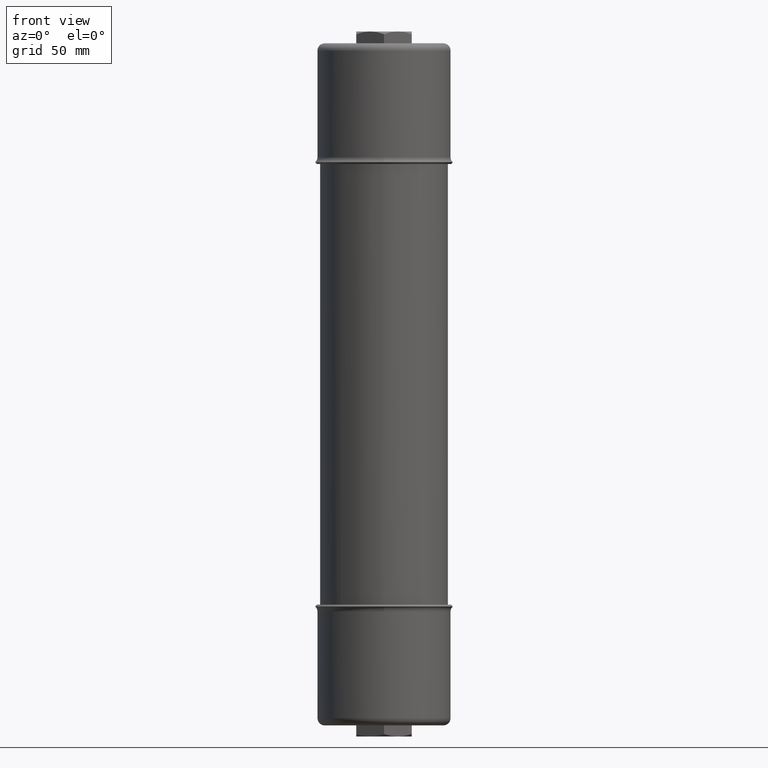
[diagram: clean part render]
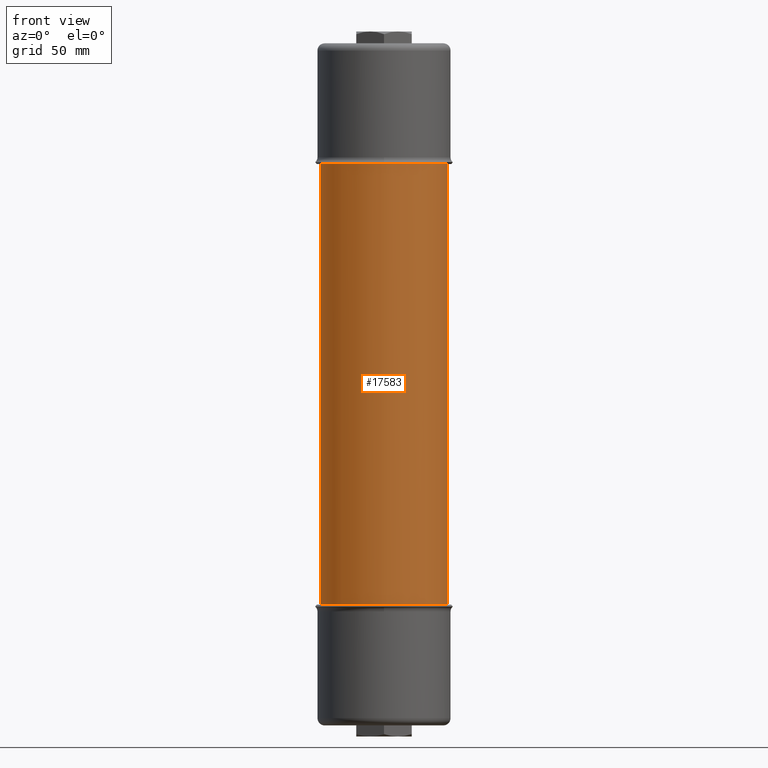
[diagram: same view with one face highlighted and labeled with its STEP entity id]
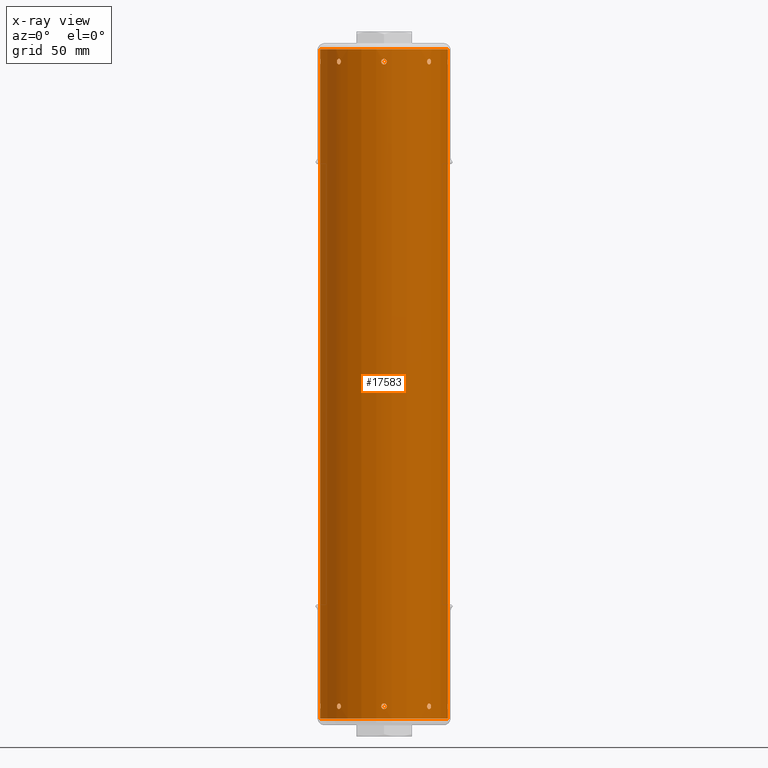
[diagram: x-ray of the same camera — body ghosted, the highlighted face saturated]
A machine part, front view. The second image highlights one B-rep face of the part: STEP entity #17583.
The next image is the same camera in x-ray: the body ghosted, the highlighted face saturated — about 0% of this face is hidden behind the body in this view.
In plain terms, the highlighted cylindrical surface (partial cylindrical patch) has radius 36.5125 mm, axis along (0, 0, -1).
Its self-contained STEP definition (entity closure, byte-faithful):
#133 = CARTESIAN_POINT ( 'NONE',  ( -0.04998304735565743000, -1.436642310745047400, -14.79260281837261300 ) ) ;
#185 = ORIENTED_EDGE ( 'NONE', *, *, #2850, .T. ) ;
#201 = CARTESIAN_POINT ( 'NONE',  ( 0.03805744304694544400, -1.437000145290492800, -14.78125532904004700 ) ) ;
#330 = ORIENTED_EDGE ( 'NONE', *, *, #3179, .F. ) ;
#421 = EDGE_LOOP ( 'NONE', ( #5228, #9542 ) ) ;
#466 = CARTESIAN_POINT ( 'NONE',  ( 1.054101186075150100, -0.9773853340167110200, -0.3413093236047601300 ) ) ;
#526 = CARTESIAN_POINT ( 'NONE',  ( 0.9891642347755709200, -1.043058886613733800, -0.3597043319209297100 ) ) ;
#528 = CARTESIAN_POINT ( 'NONE',  ( 1.437237702088746600, -0.02771903118484793700, -14.77483357753426000 ) ) ;
#590 = CARTESIAN_POINT ( 'NONE',  ( 0.03841915400166837100, -1.436998089282166800, -14.88096710541341700 ) ) ;
#602 = CARTESIAN_POINT ( 'NONE',  ( -1.043076368108779800, -0.9891458391772461900, -0.2603139545301832400 ) ) ;
#642 = CARTESIAN_POINT ( 'NONE',  ( -1.019333192939039700, -1.013598891958210800, -0.3725014472188070700 ) ) ;
#643 = CARTESIAN_POINT ( 'NONE',  ( 1.010658100604861200, -1.022248757135887800, -14.89309494226039700 ) ) ;
#646 = CARTESIAN_POINT ( 'NONE',  ( -0.04969213983105427700, -1.436642638237168600, -14.86912504940521300 ) ) ;
#665 = EDGE_CURVE ( 'NONE', #1475, #8819, #14097, .T. ) ;
#668 = CARTESIAN_POINT ( 'NONE',  ( -0.9805511868479759300, -1.051170286647185700, -0.2715387551919412100 ) ) ;
#707 = CARTESIAN_POINT ( 'NONE',  ( 0.04706968679510323300, -1.436732061688507800, -0.3513197027991212800 ) ) ;
#709 = CARTESIAN_POINT ( 'NONE',  ( -1.058341041708607200, -0.9727903827714593500, -0.3262317029878224500 ) ) ;
#710 = CARTESIAN_POINT ( 'NONE',  ( 0.9716123745692406600, -1.059422617731718100, -14.83922231123449200 ) ) ;
#728 = DIRECTION ( 'NONE',  ( 3.491483361109382100E-015, 0.0000000000000000000, -1.000000000000000000 ) ) ;
#747 = CARTESIAN_POINT ( 'NONE',  ( -1.437363751324580500, -0.02015003945699490200, -0.2506956046350218800 ) ) ;
#766 = CARTESIAN_POINT ( 'NONE',  ( -0.04710215594014374700, -1.436731067425165700, -0.3512875214415462400 ) ) ;
#781 = DIRECTION ( 'NONE',  ( 3.491483361109382100E-015, 0.0000000000000000000, -1.000000000000000000 ) ) ;
#796 = CARTESIAN_POINT ( 'NONE',  ( 1.436402723399826900, -0.05617764997899335500, -0.3376968843326613700 ) ) ;
#814 = CARTESIAN_POINT ( 'NONE',  ( -1.436402340522077800, -0.05618737097402826800, -0.3376766637078551000 ) ) ;
#973 = CARTESIAN_POINT ( 'NONE',  ( 1.010632934396963800, -1.022273583011887000, -14.76891064581400700 ) ) ;
#989 = CARTESIAN_POINT ( 'NONE',  ( 1.437500000000051700, -0.004076159739227936900, -14.89349999999999100 ) ) ;
#1044 = CARTESIAN_POINT ( 'NONE',  ( -0.9713106267552553700, -1.059698974403680200, -14.83100000000000700 ) ) ;
#1055 = CARTESIAN_POINT ( 'NONE',  ( 1.436642443394503100, -0.04969772889279475800, -14.86911766600785300 ) ) ;
#1113 = CARTESIAN_POINT ( 'NONE',  ( -1.027869249613768200, -1.004941353255158800, -14.89149883716251400 ) ) ;
#1177 = CARTESIAN_POINT ( 'NONE',  ( -1.437237702513157500, -0.02771938286730152600, -14.77483354014019800 ) ) ;
#1211 = CARTESIAN_POINT ( 'NONE',  ( -0.004174017787046759700, -1.437499850478444200, -0.2475034389969382500 ) ) ;
#1220 = CARTESIAN_POINT ( 'NONE',  ( 0.9770996375741593000, -1.054368177443177200, -0.2785786447908462600 ) ) ;
#1228 = CARTESIAN_POINT ( 'NONE',  ( -1.436478511950725700, -0.05422970729295106100, -14.86233649952864500 ) ) ;
#1236 = B_SPLINE_CURVE_WITH_KNOTS ( 'NONE', 3,
 ( #7875, #9398, #12298, #3607, #13741, #5070, #15205, #6531, #16672, #8006, #18146, #9457, #796, #10915, #2253, #12356, #3678, #13798 ),
 .UNSPECIFIED., .F., .F.,
 ( 4, 2, 2, 2, 2, 2, 2, 2, 4 ),
 ( 0.002482481657379286300, 0.002792650796322742800, 0.003102819935266199300, 0.003412989074209655700, 0.003723158213153112200, 0.004033327352096568700, 0.004343496491040025100, 0.004653665629983481600, 0.004963834768926938000 ),
 .UNSPECIFIED. ) ;
#1288 = CARTESIAN_POINT ( 'NONE',  ( 1.038336999750088400, -0.9941197420261557200, -0.2557292130159685200 ) ) ;
#1318 = VECTOR ( 'NONE', #781, 39.37007874015748100 ) ;
#1357 = CARTESIAN_POINT ( 'NONE',  ( -1.022273583011841200, -1.010632934396906000, -14.76891064581402100 ) ) ;
#1358 = B_SPLINE_CURVE_WITH_KNOTS ( 'NONE', 3,
 ( #5861, #2960, #17473, #8796, #133, #10254, #1563, #11701, #3016, #13126, #4458, #14595, #5923, #16050, #7384, #17541, #8855, #201, #10313, #1625, #11754, #3092, #13180, #4525 ),
 .UNSPECIFIED., .F., .F.,
 ( 4, 2, 2, 2, 2, 2, 2, 2, 2, 2, 2, 4 ),
 ( 0.004963834768926915500, 0.005584173049600609600, 0.006204511330274303800, 0.006514680470611150900, 0.006824849610947997900, 0.007135018751284845000, 0.007445187891621691200, 0.008065526172295384500, 0.008375695312632262800, 0.008685864452969141100, 0.009306202733643013900, 0.009926541014316886700 ),
 .UNSPECIFIED. ) ;
#1377 = LINE ( 'NONE', #2483, #16306 ) ;
#1475 = VERTEX_POINT ( 'NONE', #15359 ) ;
#1563 = CARTESIAN_POINT ( 'NONE',  ( -0.03813464272036735200, -1.436998103649844500, -14.78131395453017800 ) ) ;
#1593 = CARTESIAN_POINT ( 'NONE',  ( -1.059698974403576300, -0.9713106267553642800, -14.83100000000000700 ) ) ;
#1625 = CARTESIAN_POINT ( 'NONE',  ( 0.04993524434940818700, -1.436644031390752900, -14.79253875519194500 ) ) ;
#1736 = EDGE_CURVE ( 'NONE', #17654, #12915, #4734, .T. ) ;
#1794 = FACE_BOUND ( 'NONE', #13398, .T. ) ;
#1860 = CARTESIAN_POINT ( 'NONE',  ( 0.9713106267554190200, -1.059698974403625400, -14.83099999999999200 ) ) ;
#1902 = CARTESIAN_POINT ( 'NONE',  ( 1.049206278289224600, -0.9826396888469225400, -0.3513197027991179500 ) ) ;
#1903 = CARTESIAN_POINT ( 'NONE',  ( 1.436140661634561300, -0.06249999999993714100, -14.82283892307700400 ) ) ;
#1904 = ORIENTED_EDGE ( 'NONE', *, *, #13868, .T. ) ;
#1967 = CARTESIAN_POINT ( 'NONE',  ( 0.9826160266439469800, -1.049228534391497300, -0.3512875214415431300 ) ) ;
#1968 = CARTESIAN_POINT ( 'NONE',  ( 1.437414511523353600, -0.01617866182182994100, -14.77049291232349900 ) ) ;
#1973 = CARTESIAN_POINT ( 'NONE',  ( 0.06209465184421896600, -1.436158464764288900, -14.83919096725944600 ) ) ;
#2037 = CARTESIAN_POINT ( 'NONE',  ( -0.9716098398988936000, -1.059424938687688600, -0.3181909672594461800 ) ) ;
#2038 = CARTESIAN_POINT ( 'NONE',  ( 1.058349881155858700, -0.9727807619187672800, -14.84718025490507300 ) ) ;
#2041 = CARTESIAN_POINT ( 'NONE',  ( 0.01640259482335356500, -1.437426100692108300, -14.89185632314398000 ) ) ;
#2047 = CARTESIAN_POINT ( 'NONE',  ( -1.035903327553944400, -0.9966568260122423700, -0.2538497723888710200 ) ) ;
#2073 = CARTESIAN_POINT ( 'NONE',  ( -1.437499999999999100, -3.994968726085048700E-015, -0.2475000000000054900 ) ) ;
#2092 = CARTESIAN_POINT ( 'NONE',  ( 0.06249999999998320100, -1.436140661634508000, -0.3141300441006558100 ) ) ;
#2096 = CARTESIAN_POINT ( 'NONE',  ( -1.027869249613854800, -1.004941353255122600, -0.3704988371625168000 ) ) ;
#2098 = CARTESIAN_POINT ( 'NONE',  ( 1.002150931830363200, -1.030589191487042200, -14.89031821869367500 ) ) ;
#2100 = CARTESIAN_POINT ( 'NONE',  ( -0.05617479857492949100, -1.436402835693692900, -14.85870281137630000 ) ) ;
#2117 = CARTESIAN_POINT ( 'NONE',  ( -0.9725371593523940400, -1.058578052954739300, -0.2935379470165444000 ) ) ;
#2161 = CARTESIAN_POINT ( 'NONE',  ( 0.03144578506560716900, -1.437175703478688700, -0.3646232531542000200 ) ) ;
#2163 = CARTESIAN_POINT ( 'NONE',  ( -1.059698974403661300, -0.9713106267553268700, -0.3140793299884253600 ) ) ;
#2164 = CARTESIAN_POINT ( 'NONE',  ( 0.9713106267554190200, -1.059698974403625400, -14.83099999999999200 ) ) ;
#2210 = CARTESIAN_POINT ( 'NONE',  ( -1.437163011856945400, -0.03130932616485716800, -0.2557537022331059000 ) ) ;
#2226 = CARTESIAN_POINT ( 'NONE',  ( -0.05421853456417000100, -1.436478934503308900, -0.3413556799138999200 ) ) ;
#2253 = CARTESIAN_POINT ( 'NONE',  ( 1.436226765536092500, -0.06049435315413361600, -0.3262281106638924600 ) ) ;
#2265 = FACE_BOUND ( 'NONE', #6959, .T. ) ;
#2275 = CARTESIAN_POINT ( 'NONE',  ( -1.436642215577403000, -0.04970433452172214700, -0.3481092703359048900 ) ) ;
#2383 = EDGE_CURVE ( 'NONE', #7500, #16091, #17274, .T. ) ;
#2418 = DIRECTION ( 'NONE',  ( 3.491483361109382100E-015, 0.0000000000000000000, -1.000000000000000000 ) ) ;
#2435 = CARTESIAN_POINT ( 'NONE',  ( 1.022259242287905800, -1.010673172572229600, -14.76849318644293900 ) ) ;
#2483 = CARTESIAN_POINT ( 'NONE',  ( 1.437500000000000000, 1.760429773774300700E-016, -0.02999999999999547800 ) ) ;
#2487 = CARTESIAN_POINT ( 'NONE',  ( 1.436464981074960300, -0.05462905127683892500, -0.2785635375899061000 ) ) ;
#2497 = EDGE_CURVE ( 'NONE', #3188, #17487, #11915, .T. ) ;
#2513 = CARTESIAN_POINT ( 'NONE',  ( -0.9736666866269048100, -1.057535767238614100, -14.85115003853340800 ) ) ;
#2525 = CARTESIAN_POINT ( 'NONE',  ( 1.436402723399879700, -0.05617764997894948700, -14.85869688433264600 ) ) ;
#2566 = CARTESIAN_POINT ( 'NONE',  ( -1.437499999999999100, -3.994968726085048700E-015, -0.2475000000000054900 ) ) ;
#2573 = CARTESIAN_POINT ( 'NONE',  ( -1.035851464327934200, -0.9967107482253042500, -14.88718736999209500 ) ) ;
#2576 = VERTEX_POINT ( 'NONE', #13783 ) ;
#2612 = CARTESIAN_POINT ( 'NONE',  ( -0.06250000000001677800, -1.436140661634506300, -0.3099999999999997200 ) ) ;
#2631 = CARTESIAN_POINT ( 'NONE',  ( -1.436998931198709900, -0.03810338945872224900, -14.78129017764995500 ) ) ;
#2670 = CARTESIAN_POINT ( 'NONE',  ( 0.01630622942484394300, -1.437427500402568300, -0.2491097032800169100 ) ) ;
#2683 = CARTESIAN_POINT ( 'NONE',  ( 0.9868112483787042600, -1.045283744293731300, -0.2629539241199883600 ) ) ;
#2690 = CARTESIAN_POINT ( 'NONE',  ( -1.436730446637963300, -0.04712100518737087600, -14.87226600772020500 ) ) ;
#2740 = CARTESIAN_POINT ( 'NONE',  ( 1.045235964326675800, -0.9868618782625112600, -0.2628924684027117400 ) ) ;
#2744 = EDGE_CURVE ( 'NONE', #10290, #17636, #5148, .T. ) ;
#2804 = CARTESIAN_POINT ( 'NONE',  ( -1.010673172572184300, -1.022259242287848500, -14.76849318644295300 ) ) ;
#2816 = ORIENTED_EDGE ( 'NONE', *, *, #2497, .T. ) ;
#2850 = EDGE_CURVE ( 'NONE', #2576, #18498, #15106, .T. ) ;
#2916 = AXIS2_PLACEMENT_3D ( 'NONE', #17206, #8531, #18677 ) ;
#2958 = EDGE_LOOP ( 'NONE', ( #3041, #11040 ) ) ;
#2960 = CARTESIAN_POINT ( 'NONE',  ( -0.06249999999991536600, -1.436140661634508500, -14.82284319488744000 ) ) ;
#2972 = CARTESIAN_POINT ( 'NONE',  ( 1.059698974403649800, -0.9713106267553417400, -0.3141300441006527100 ) ) ;
#3016 = CARTESIAN_POINT ( 'NONE',  ( -0.02775146737788929500, -1.437237067756222700, -14.77484977238886700 ) ) ;
#3041 = ORIENTED_EDGE ( 'NONE', *, *, #2383, .T. ) ;
#3092 = CARTESIAN_POINT ( 'NONE',  ( 0.06084009932566556600, -1.436215339993526900, -14.81453794701654300 ) ) ;
#3179 = EDGE_CURVE ( 'NONE', #10507, #7631, #7824, .T. ) ;
#3188 = VERTEX_POINT ( 'NONE', #16749 ) ;
#3285 = ORIENTED_EDGE ( 'NONE', *, *, #11562, .T. ) ;
#3306 = CARTESIAN_POINT ( 'NONE',  ( 1.059698974403734800, -0.9713106267553045500, -14.83099999999999800 ) ) ;
#3353 = CARTESIAN_POINT ( 'NONE',  ( 1.038472213545961000, -0.9940011578266968500, -0.3646232531541970800 ) ) ;
#3369 = CYLINDRICAL_SURFACE ( 'NONE', #6231, 1.437500000000000000 ) ;
#3412 = CARTESIAN_POINT ( 'NONE',  ( 0.9774057021626020300, -1.054082289075232200, -0.3413556799138970900 ) ) ;
#3415 = CARTESIAN_POINT ( 'NONE',  ( 1.437500000000051300, -0.004124911665117911500, -14.76849999999999400 ) ) ;
#3473 = CARTESIAN_POINT ( 'NONE',  ( -0.9736666866269927400, -1.057535767238579700, -0.3301500385334044100 ) ) ;
#3476 = CARTESIAN_POINT ( 'NONE',  ( 1.055406101828115100, -0.9759747311586364200, -14.85871938078326900 ) ) ;
#3477 = CARTESIAN_POINT ( 'NONE',  ( -0.004054763108813594700, -1.437500062922552900, -14.89350144721880700 ) ) ;
#3492 = CARTESIAN_POINT ( 'NONE',  ( -1.027874512720420300, -1.004935914728611900, -0.2495041272944411000 ) ) ;
#3529 = CARTESIAN_POINT ( 'NONE',  ( 0.06249999999998320800, -1.436140661634507800, -0.3099999999999997200 ) ) ;
#3531 = CARTESIAN_POINT ( 'NONE',  ( -1.035851464328020300, -0.9967107482252669500, -0.3661873699920903900 ) ) ;
#3533 = CARTESIAN_POINT ( 'NONE',  ( 0.9940690214311211900, -1.038385528083908300, -14.88522970568909000 ) ) ;
#3535 = CARTESIAN_POINT ( 'NONE',  ( -0.06049345106933883700, -1.436226803730949600, -14.84723170298782000 ) ) ;
#3554 = CARTESIAN_POINT ( 'NONE',  ( -0.9713106267553437400, -1.059698974403646000, -0.3100000000000030000 ) ) ;
#3592 = CARTESIAN_POINT ( 'NONE',  ( 0.008176265297358662300, -1.437499873638476800, -0.3724970936847780100 ) ) ;
#3607 = CARTESIAN_POINT ( 'NONE',  ( 1.437413956997165100, -0.01623033673383864100, -0.3704939763148486500 ) ) ;
#3609 = CARTESIAN_POINT ( 'NONE',  ( -1.059698974403576300, -0.9713106267553642800, -14.83100000000000700 ) ) ;
#3632 = CARTESIAN_POINT ( 'NONE',  ( -1.436908921393151000, -0.04131970598548279800, -0.2629303159893043900 ) ) ;
#3652 = CARTESIAN_POINT ( 'NONE',  ( -0.05931193571546534300, -1.436276717302591400, -0.3301282894151712500 ) ) ;
#3678 = CARTESIAN_POINT ( 'NONE',  ( 1.436140661634508700, -0.06249999999998769000, -0.3140784025379546600 ) ) ;
#3693 = LINE ( 'NONE', #16841, #14791 ) ;
#3697 = CARTESIAN_POINT ( 'NONE',  ( -1.436909915668983500, -0.04128752449213665700, -0.3571021532877071100 ) ) ;
#3745 = LINE ( 'NONE', #14231, #14857 ) ;
#3772 = ORIENTED_EDGE ( 'NONE', *, *, #12173, .T. ) ;
#3785 = VERTEX_POINT ( 'NONE', #16117 ) ;
#3806 = CARTESIAN_POINT ( 'NONE',  ( 0.9725204398373961100, -1.058593382489696900, -14.81462198236961700 ) ) ;
#3865 = CARTESIAN_POINT ( 'NONE',  ( 1.035850470274147300, -0.9967118032514934400, -14.77481147617150200 ) ) ;
#3880 = CARTESIAN_POINT ( 'NONE',  ( 1.437500000000051700, 1.760429786049945000E-016, -14.89349999999999600 ) ) ;
#3910 = CARTESIAN_POINT ( 'NONE',  ( 1.436908754429449000, -0.04132545563811729900, -0.2629354229799505400 ) ) ;
#3934 = CARTESIAN_POINT ( 'NONE',  ( -0.9773853340166250800, -1.054101186075180600, -14.86230932360476900 ) ) ;
#3945 = CARTESIAN_POINT ( 'NONE',  ( 1.436226765536144900, -0.06049435315408440600, -14.84722811066388600 ) ) ;
#3956 = VECTOR ( 'NONE', #4900, 39.37007874015748100 ) ;
#4004 = CARTESIAN_POINT ( 'NONE',  ( -1.043058886613648300, -0.9891642347756045600, -14.88070433192093700 ) ) ;
#4039 = CARTESIAN_POINT ( 'NONE',  ( -0.05463710851377492200, -1.436464667760976300, -0.2785786447908492600 ) ) ;
#4058 = CARTESIAN_POINT ( 'NONE',  ( -1.436642893698785200, -0.04996710830601948400, -14.79258084969818300 ) ) ;
#4098 = CARTESIAN_POINT ( 'NONE',  ( 0.03126632278205677300, -1.437163944578297500, -0.2557292130159717300 ) ) ;
#4107 = CARTESIAN_POINT ( 'NONE',  ( 0.9940670089094619800, -1.038387491578389100, -0.2557708427334229900 ) ) ;
#4112 = CARTESIAN_POINT ( 'NONE',  ( -1.436998327463006300, -0.03812505286330333800, -14.88069213721712100 ) ) ;
#4161 = VERTEX_POINT ( 'NONE', #7424 ) ;
#4171 = CARTESIAN_POINT ( 'NONE',  ( 1.054338580766297100, -0.9771316071166597000, -0.2785030400783164400 ) ) ;
#4178 = CARTESIAN_POINT ( 'NONE',  ( -1.058593382489648300, -0.9725204398373407100, -14.81462198236963000 ) ) ;
#4240 = CARTESIAN_POINT ( 'NONE',  ( -0.9967118032514478100, -1.035850470274088700, -14.77481147617150900 ) ) ;
#4458 = CARTESIAN_POINT ( 'NONE',  ( -0.01622003819082238800, -1.437414038115936200, -14.77050412729443900 ) ) ;
#4460 = B_SPLINE_CURVE_WITH_KNOTS ( 'NONE', 3,
 ( #13404, #4882, #16475, #7802, #17938, #9268, #602, #10718, #2047, #12180, #3492, #13608, #4946, #15073, #6408, #16537, #7870, #18004, #9330, #668, #10771, #2117, #12234, #3554 ),
 .UNSPECIFIED., .F., .F.,
 ( 4, 2, 2, 2, 2, 2, 2, 2, 2, 2, 2, 4 ),
 ( 0.004963834768926927600, 0.005584173049600667800, 0.006204511330274407900, 0.006514680470611277500, 0.006824849610948146300, 0.007135018751285016800, 0.007445187891621886400, 0.008065526172295618700, 0.008375695312632477900, 0.008685864452969337100, 0.009306202733643066000, 0.009926541014316794800 ),
 .UNSPECIFIED. ) ;
#4481 = B_SPLINE_CURVE_WITH_KNOTS ( 'NONE', 3,
 ( #18203, #9583, #3806, #13927, #5269, #15392, #6722, #16844, #8198, #18335, #9652, #973, #11103, #2435, #12539, #3865, #13997, #5326, #15460, #6782, #16920, #8262, #18405, #9717 ),
 .UNSPECIFIED., .F., .F.,
 ( 4, 2, 2, 2, 2, 2, 2, 2, 2, 2, 2, 4 ),
 ( 0.004963834768926969300, 0.005584173049600816100, 0.006204511330274662900, 0.006514680470611522100, 0.006824849610948381300, 0.007135018751285240500, 0.007445187891622100600, 0.008065526172295833800, 0.008375695312632731200, 0.008685864452969630300, 0.009306202733643308800, 0.009926541014316987400 ),
 .UNSPECIFIED. ) ;
#4525 = CARTESIAN_POINT ( 'NONE',  ( 0.06250000000008457100, -1.436140661634505600, -14.83100000000000100 ) ) ;
#4734 = CIRCLE ( 'NONE', #12717, 1.437500000000000000 ) ;
#4804 = CARTESIAN_POINT ( 'NONE',  ( 1.022247401241121800, -1.010684415968023300, -0.3724970936847747900 ) ) ;
#4862 = CARTESIAN_POINT ( 'NONE',  ( 0.9736611345153175500, -1.057540878414716900, -0.3301282894151682500 ) ) ;
#4864 = CARTESIAN_POINT ( 'NONE',  ( -0.9713106267553437400, -1.059698974403646000, -0.3100000000000030000 ) ) ;
#4882 = CARTESIAN_POINT ( 'NONE',  ( -1.059698974403661600, -0.9713106267553270900, -0.3018431948874401600 ) ) ;
#4900 = DIRECTION ( 'NONE',  ( 3.491483361109382100E-015, 0.0000000000000000000, -1.000000000000000000 ) ) ;
#4927 = CARTESIAN_POINT ( 'NONE',  ( -0.9773853340167126800, -1.054101186075146100, -0.3413093236047666200 ) ) ;
#4929 = CARTESIAN_POINT ( 'NONE',  ( 1.051009478716713700, -0.9807091705922428300, -14.86910338648892900 ) ) ;
#4933 = CARTESIAN_POINT ( 'NONE',  ( -0.01621247099350645000, -1.437414162156569500, -14.89149883716251400 ) ) ;
#4946 = CARTESIAN_POINT ( 'NONE',  ( -1.019417368509966600, -1.013514415945945900, -0.2475034389969415500 ) ) ;
#4979 = VERTEX_POINT ( 'NONE', #8461 ) ;
#4989 = CARTESIAN_POINT ( 'NONE',  ( -1.043058886613735400, -0.9891642347755670300, -0.3597043319209360900 ) ) ;
#4992 = CARTESIAN_POINT ( 'NONE',  ( 0.9868697079284771700, -1.045228660519855100, -14.87812100218805100 ) ) ;
#4993 = CARTESIAN_POINT ( 'NONE',  ( -0.06249999999991534500, -1.436140661634508500, -14.83507932998842600 ) ) ;
#5051 = CARTESIAN_POINT ( 'NONE',  ( -0.008195831831587376000, -1.437482224629083000, -0.3720949422604045200 ) ) ;
#5070 = CARTESIAN_POINT ( 'NONE',  ( 1.437238244882210300, -0.02769098002192375500, -0.3661802576578774300 ) ) ;
#5091 = CARTESIAN_POINT ( 'NONE',  ( -1.436465202696187900, -0.05462325443230697100, -0.2785542174905327200 ) ) ;
#5109 = CARTESIAN_POINT ( 'NONE',  ( -0.06209121839792335800, -1.436158615883135600, -0.3182223112345001200 ) ) ;
#5148 = LINE ( 'NONE', #10766, #1318 ) ;
#5150 = B_SPLINE_CURVE_WITH_KNOTS ( 'NONE', 3,
 ( #2612, #11287, #12700, #4039, #14167, #5504, #15626, #6948, #17093, #8438, #18562, #9893, #1211, #11348, #2670, #12769, #4098, #14235, #5565, #15691, #7013, #17165, #8484, #18630 ),
 .UNSPECIFIED., .F., .F.,
 ( 4, 2, 2, 2, 2, 2, 2, 2, 2, 2, 2, 4 ),
 ( 0.004963834768926927600, 0.005584173049600660800, 0.006204511330274394000, 0.006514680470611260200, 0.006824849610948127200, 0.007135018751284994200, 0.007445187891621860400, 0.008065526172295594400, 0.008375695312632460600, 0.008685864452969326700, 0.009306202733643059000, 0.009926541014316793100 ),
 .UNSPECIFIED. ) ;
#5162 = CARTESIAN_POINT ( 'NONE',  ( -1.437161972061589100, -0.03135568285804838500, -0.3642185328973096000 ) ) ;
#5228 = ORIENTED_EDGE ( 'NONE', *, *, #16895, .T. ) ;
#5269 = CARTESIAN_POINT ( 'NONE',  ( 0.9805161683378032000, -1.051202871796917500, -14.79260281837260200 ) ) ;
#5326 = CARTESIAN_POINT ( 'NONE',  ( 1.043023223354100600, -0.9892018712478736200, -14.78125532904005200 ) ) ;
#5340 = CARTESIAN_POINT ( 'NONE',  ( 1.437413956997216200, -0.01623033673382817000, -14.89149397631483000 ) ) ;
#5375 = CARTESIAN_POINT ( 'NONE',  ( 1.437163008893174400, -0.03130983350832473900, -0.2557536698643037000 ) ) ;
#5403 = CARTESIAN_POINT ( 'NONE',  ( -0.9826396888468367200, -1.049206278289254800, -14.87231970279912700 ) ) ;
#5414 = CARTESIAN_POINT ( 'NONE',  ( 1.436140661634561300, -0.06249999999993685600, -14.83507840253795800 ) ) ;
#5465 = CARTESIAN_POINT ( 'NONE',  ( -1.049228534391412500, -0.9826160266439806200, -14.87228752144154600 ) ) ;
#5475 = EDGE_CURVE ( 'NONE', #12414, #6495, #7022, .T. ) ;
#5504 = CARTESIAN_POINT ( 'NONE',  ( -0.04134629837442742300, -1.436908149333905800, -0.2629539241199914700 ) ) ;
#5521 = CARTESIAN_POINT ( 'NONE',  ( -1.436214638007105000, -0.06085632305481512800, -14.81459740548987200 ) ) ;
#5541 = DIRECTION ( 'NONE',  ( 3.491483361109382100E-015, 0.0000000000000000000, -1.000000000000000000 ) ) ;
#5565 = CARTESIAN_POINT ( 'NONE',  ( 0.04127671210152855700, -1.436910164529367200, -0.2628924684027149100 ) ) ;
#5577 = CARTESIAN_POINT ( 'NONE',  ( 1.002089907947618700, -1.030648509077497100, -0.2507109187694254200 ) ) ;
#5580 = CARTESIAN_POINT ( 'NONE',  ( -1.437238028802733100, -0.02770281364645127400, -14.88717479750058500 ) ) ;
#5596 = DIRECTION ( 'NONE',  ( -1.000000000000000000, 0.0000000000000000000, -3.492014391901275600E-015 ) ) ;
#5621 = CARTESIAN_POINT ( 'NONE',  ( -1.437500000000000000, -1.941094747098946400E-030, -0.03000000000000551900 ) ) ;
#5638 = CARTESIAN_POINT ( 'NONE',  ( 1.059698974403649600, -0.9713106267553417400, -0.3017417897225852500 ) ) ;
#5644 = CARTESIAN_POINT ( 'NONE',  ( -1.051202871796869100, -0.9805161683377473500, -14.79260281837261300 ) ) ;
#5645 = FACE_BOUND ( 'NONE', #2958, .T. ) ;
#5673 = VERTEX_POINT ( 'NONE', #6068 ) ;
#5707 = CARTESIAN_POINT ( 'NONE',  ( -0.9892018712478269900, -1.043023223354044000, -14.78125532904005400 ) ) ;
#5796 = ORIENTED_EDGE ( 'NONE', *, *, #8897, .F. ) ;
#5861 = CARTESIAN_POINT ( 'NONE',  ( -0.06249999999991534500, -1.436140661634508700, -14.83100000000000000 ) ) ;
#5923 = CARTESIAN_POINT ( 'NONE',  ( -0.004174017786943238400, -1.437499850478444600, -14.76850343899693700 ) ) ;
#6019 = ORIENTED_EDGE ( 'NONE', *, *, #12163, .T. ) ;
#6068 = CARTESIAN_POINT ( 'NONE',  ( 0.06249999999998320800, -1.436140661634507800, -0.3099999999999997200 ) ) ;
#6090 = CARTESIAN_POINT ( 'NONE',  ( 1.047445008332689100E-016, -1.941094747098946400E-030, -0.03000000000000049800 ) ) ;
#6231 = AXIS2_PLACEMENT_3D ( 'NONE', #15604, #5541, #5596 ) ;
#6261 = CARTESIAN_POINT ( 'NONE',  ( 1.010658100604775900, -1.022248757135922700, -0.3720949422604014100 ) ) ;
#6262 = CARTESIAN_POINT ( 'NONE',  ( 1.436464981075012300, -0.05462905127679756900, -14.79956353758992000 ) ) ;
#6274 = CARTESIAN_POINT ( 'NONE',  ( -1.437499999999998900, 2.088307372718930400E-025, -0.3725000000000043800 ) ) ;
#6322 = CARTESIAN_POINT ( 'NONE',  ( 0.9716123745691529500, -1.059422617731752900, -0.3182223112344970100 ) ) ;
#6327 = CARTESIAN_POINT ( 'NONE',  ( 1.059698974403734800, -0.9713106267553045500, -14.83099999999999800 ) ) ;
#6330 = CARTESIAN_POINT ( 'NONE',  ( 0.05930439563242983400, -1.436277029091100700, -14.85115003853340800 ) ) ;
#6393 = CARTESIAN_POINT ( 'NONE',  ( -0.9826396888469239900, -1.049206278289220400, -0.3513197027991245000 ) ) ;
#6394 = CARTESIAN_POINT ( 'NONE',  ( 1.043277537805583200, -0.9889446491615321300, -14.88096710541342200 ) ) ;
#6397 = CARTESIAN_POINT ( 'NONE',  ( -0.02767666577665890300, -1.437238523679963600, -14.88718736999208400 ) ) ;
#6408 = CARTESIAN_POINT ( 'NONE',  ( -1.004884487596789300, -1.027944978400578500, -0.2491097032800200200 ) ) ;
#6450 = CARTESIAN_POINT ( 'NONE',  ( 0.06050650447261245200, -1.436226251193826900, -0.3261802549050768500 ) ) ;
#6453 = CARTESIAN_POINT ( 'NONE',  ( -1.049228534391498400, -0.9826160266439424300, -0.3512875214415494600 ) ) ;
#6455 = CARTESIAN_POINT ( 'NONE',  ( 0.9807221025930470400, -1.050997400685473600, -14.86912504940520000 ) ) ;
#6495 = VERTEX_POINT ( 'NONE', #12817 ) ;
#6497 = EDGE_CURVE ( 'NONE', #17195, #15808, #14305, .T. ) ;
#6498 = CARTESIAN_POINT ( 'NONE',  ( -1.437500000000025100, -0.004130044020427556600, -0.2475000000000054700 ) ) ;
#6512 = CARTESIAN_POINT ( 'NONE',  ( -0.02010888624847571900, -1.437364325587679300, -0.3693182186936844700 ) ) ;
#6531 = CARTESIAN_POINT ( 'NONE',  ( 1.436998475078131700, -0.03811952442547325600, -0.3596963926009105700 ) ) ;
#6554 = CARTESIAN_POINT ( 'NONE',  ( -1.436140788118466700, -0.06249709361965131300, -0.3018237346365743000 ) ) ;
#6577 = CARTESIAN_POINT ( 'NONE',  ( -0.06250000000001677800, -1.436140661634506300, -0.3099999999999997200 ) ) ;
#6618 = CARTESIAN_POINT ( 'NONE',  ( -1.437364062872310600, -0.02012829063887605600, -0.3693119353428637700 ) ) ;
#6640 = CARTESIAN_POINT ( 'NONE',  ( 1.436140661634508700, -0.06249999999998769700, -0.3099999999999950600 ) ) ;
#6722 = CARTESIAN_POINT ( 'NONE',  ( 0.9891458391773397800, -1.043076368108741400, -14.78131395453017700 ) ) ;
#6782 = CARTESIAN_POINT ( 'NONE',  ( 1.051170286647277600, -0.9805511868479343000, -14.79253875519193600 ) ) ;
#6789 = CARTESIAN_POINT ( 'NONE',  ( -0.9713106267552555900, -1.059698974403680200, -14.83513004410065500 ) ) ;
#6801 = CARTESIAN_POINT ( 'NONE',  ( 1.437238244882261400, -0.02769098002190478400, -14.88718025765786600 ) ) ;
#6831 = CARTESIAN_POINT ( 'NONE',  ( 1.437363672292168500, -0.02015516236092583200, -0.2506975453068416800 ) ) ;
#6850 = CARTESIAN_POINT ( 'NONE',  ( -1.437499999999974700, -0.004130044020429780500, -14.76850000000000300 ) ) ;
#6858 = CARTESIAN_POINT ( 'NONE',  ( -0.9940011578266111400, -1.038472213545991600, -14.88562325315420600 ) ) ;
#6903 = CARTESIAN_POINT ( 'NONE',  ( -1.437499999999948500, -3.628248889491690300E-015, -14.76850000000000300 ) ) ;
#6912 = CARTESIAN_POINT ( 'NONE',  ( -1.054082289075147800, -0.9774057021626356700, -14.86235567991390900 ) ) ;
#6926 = VERTEX_POINT ( 'NONE', #1860 ) ;
#6948 = CARTESIAN_POINT ( 'NONE',  ( -0.03133931384066845900, -1.437162359748076300, -0.2557708427334262100 ) ) ;
#6959 = EDGE_LOOP ( 'NONE', ( #2816, #10680 ) ) ;
#6963 = EDGE_CURVE ( 'NONE', #3785, #4161, #4460, .T. ) ;
#6972 = CARTESIAN_POINT ( 'NONE',  ( -1.436140598650937200, -0.06250144725115922000, -14.83505476239335700 ) ) ;
#7013 = CARTESIAN_POINT ( 'NONE',  ( 0.05459357462254018500, -1.436466345630348100, -0.2785030400783196600 ) ) ;
#7022 = B_SPLINE_CURVE_WITH_KNOTS ( 'NONE', 3,
 ( #9909, #14055, #15639, #1220, #11361, #2683, #12785, #4107, #14248, #5577, #15703, #7028, #17176, #8495, #18645, #9969, #1288, #11412, #2740, #12844, #4171, #14309, #5638, #15761 ),
 .UNSPECIFIED., .F., .F.,
 ( 4, 2, 2, 2, 2, 2, 2, 2, 2, 2, 2, 4 ),
 ( 0.004963834768926930200, 0.005584173049600655600, 0.006204511330274381900, 0.006514680470611246300, 0.006824849610948112400, 0.007135018751284976900, 0.007445187891621843000, 0.008065526172295566600, 0.008375695312632434500, 0.008685864452969302400, 0.009306202733643048600, 0.009926541014316796500 ),
 .UNSPECIFIED. ) ;
#7028 = CARTESIAN_POINT ( 'NONE',  ( 1.010632934396874100, -1.022273583011925400, -0.2479106458140119000 ) ) ;
#7034 = CARTESIAN_POINT ( 'NONE',  ( -1.437413935005750200, -0.01623170366529972500, -14.89149345091635900 ) ) ;
#7097 = CARTESIAN_POINT ( 'NONE',  ( -1.043076368108694300, -0.9891458391772826000, -14.78131395453018700 ) ) ;
#7156 = CARTESIAN_POINT ( 'NONE',  ( -0.9805511868478882200, -1.051170286647221200, -14.79253875519194700 ) ) ;
#7384 = CARTESIAN_POINT ( 'NONE',  ( 0.01630622942494755800, -1.437427500402567600, -14.77010970328001700 ) ) ;
#7424 = CARTESIAN_POINT ( 'NONE',  ( -0.9713106267553437400, -1.059698974403646000, -0.3100000000000030000 ) ) ;
#7500 = VERTEX_POINT ( 'NONE', #13710 ) ;
#7546 = DIRECTION ( 'NONE',  ( 1.000000000000000000, 0.0000000000000000000, 3.492014391901275600E-015 ) ) ;
#7557 = CARTESIAN_POINT ( 'NONE',  ( 1.437500000000000000, 1.760429773774300700E-016, -0.02999999999999547800 ) ) ;
#7631 = VERTEX_POINT ( 'NONE', #9684 ) ;
#7657 = CARTESIAN_POINT ( 'NONE',  ( 1.058349881155773900, -0.9727807619188039200, -0.3261802549050735700 ) ) ;
#7722 = CARTESIAN_POINT ( 'NONE',  ( 1.002150931830277500, -1.030589191487076800, -0.3693182186936813100 ) ) ;
#7723 = CARTESIAN_POINT ( 'NONE',  ( 1.436908754429500700, -0.04132545563808716300, -14.78393542297996500 ) ) ;
#7780 = CARTESIAN_POINT ( 'NONE',  ( 0.9713106267553307500, -1.059698974403659800, -0.3099999999999965600 ) ) ;
#7788 = CARTESIAN_POINT ( 'NONE',  ( 0.05424629921511745600, -1.436477894246013900, -14.86230932360476200 ) ) ;
#7793 = LINE ( 'NONE', #5621, #9626 ) ;
#7802 = CARTESIAN_POINT ( 'NONE',  ( -1.054368177443179000, -0.9770996375741558500, -0.2785786447908524800 ) ) ;
#7824 = LINE ( 'NONE', #10676, #3956 ) ;
#7840 = B_SPLINE_CURVE_WITH_KNOTS ( 'NONE', 3,
 ( #3529, #2092, #15115, #6450, #16578, #7918, #18051, #9371, #707, #10821, #2161, #12276, #3592, #13713, #5051, #15177, #6512, #16643, #7985, #18120, #9436, #766, #10893, #2226, #12331, #3652, #13778, #5109, #15233, #6577 ),
 .UNSPECIFIED., .F., .F.,
 ( 4, 2, 2, 2, 2, 2, 2, 2, 2, 2, 2, 2, 2, 2, 4 ),
 ( 0.0000000000000000000, 0.0003102396730579317300, 0.0006204793461158634600, 0.0009307190191737952500, 0.001240958692231726900, 0.001861438038347593500, 0.002481917384463459900, 0.002792157057521393400, 0.003102396730579326500, 0.003412636403637260000, 0.003722876076695193600, 0.004033115749753127100, 0.004343355422811059700, 0.004653595095868993300, 0.004963834768926927600 ),
 .UNSPECIFIED. ) ;
#7853 = CARTESIAN_POINT ( 'NONE',  ( -0.9940011578266980700, -1.038472213545956800, -0.3646232531542035200 ) ) ;
#7855 = CARTESIAN_POINT ( 'NONE',  ( 1.028012129282597900, -1.004815357225308700, -14.89185632314397800 ) ) ;
#7857 = CARTESIAN_POINT ( 'NONE',  ( -0.03810927378436102700, -1.436998750018469800, -14.88070433192093300 ) ) ;
#7870 = CARTESIAN_POINT ( 'NONE',  ( -0.9941197420261573800, -1.038336999750084600, -0.2557292130159748400 ) ) ;
#7875 = CARTESIAN_POINT ( 'NONE',  ( 1.437500000000000900, 1.760429786051342500E-016, -0.3724999999999950000 ) ) ;
#7918 = CARTESIAN_POINT ( 'NONE',  ( 0.05616646083923564100, -1.436403162177275000, -0.3377193807832724000 ) ) ;
#7922 = CARTESIAN_POINT ( 'NONE',  ( -1.054082289075233900, -0.9774057021625979200, -0.3413556799139031400 ) ) ;
#7924 = CARTESIAN_POINT ( 'NONE',  ( 0.9759686046304982800, -1.055411766638747000, -14.85870281137629200 ) ) ;
#7962 = VERTEX_POINT ( 'NONE', #2566 ) ;
#7985 = CARTESIAN_POINT ( 'NONE',  ( -0.03133650237277908100, -1.437162394415489700, -0.3642297056890959600 ) ) ;
#8006 = CARTESIAN_POINT ( 'NONE',  ( 1.436730840307430400, -0.04710901481116157300, -0.3512796138468926600 ) ) ;
#8024 = CARTESIAN_POINT ( 'NONE',  ( -1.436158454412759000, -0.06209494235980841200, -0.3181958310470133200 ) ) ;
#8033 = EDGE_CURVE ( 'NONE', #16091, #7500, #17926, .T. ) ;
#8089 = CARTESIAN_POINT ( 'NONE',  ( -1.437482063315282300, -0.008222311085020993200, -0.3720912184456660600 ) ) ;
#8104 = ORIENTED_EDGE ( 'NONE', *, *, #2744, .T. ) ;
#8198 = CARTESIAN_POINT ( 'NONE',  ( 0.9966568260123357400, -1.035903327553905400, -14.77484977238886200 ) ) ;
#8262 = CARTESIAN_POINT ( 'NONE',  ( 1.058578052954829700, -0.9725371593523536300, -14.81453794701654700 ) ) ;
#8280 = CARTESIAN_POINT ( 'NONE',  ( 1.436998475078183200, -0.03811952442544485500, -14.88069639260089600 ) ) ;
#8311 = CARTESIAN_POINT ( 'NONE',  ( 1.437482256535572700, -0.008184691901371931100, -0.2479043674972336900 ) ) ;
#8343 = CARTESIAN_POINT ( 'NONE',  ( -1.010684415967938500, -1.022247401241153500, -14.89349709368478800 ) ) ;
#8383 = CARTESIAN_POINT ( 'NONE',  ( -1.437482214283930700, -0.008190967295413928100, -14.76890534814361700 ) ) ;
#8397 = CARTESIAN_POINT ( 'NONE',  ( -1.057540878414632500, -0.9736611345153501900, -14.85112828941517400 ) ) ;
#8438 = CARTESIAN_POINT ( 'NONE',  ( -0.02019398052014806000, -1.437363119056866800, -0.2507109187694285800 ) ) ;
#8455 = CARTESIAN_POINT ( 'NONE',  ( -1.436226576387413600, -0.06049883739589791800, -14.84721247010698500 ) ) ;
#8461 = CARTESIAN_POINT ( 'NONE',  ( -1.437499999999948000, 2.078757186563203700E-025, -14.89350000000000300 ) ) ;
#8484 = CARTESIAN_POINT ( 'NONE',  ( 0.06249999999998323600, -1.436140661634508000, -0.3017417897225885800 ) ) ;
#8495 = CARTESIAN_POINT ( 'NONE',  ( 1.022259242287816300, -1.010673172572269100, -0.2474931864429418500 ) ) ;
#8501 = CARTESIAN_POINT ( 'NONE',  ( -1.437499999999948500, -0.004079329967685644800, -14.89350000000000800 ) ) ;
#8531 = DIRECTION ( 'NONE',  ( -3.491483361109382100E-015, 0.0000000000000000000, 1.000000000000000000 ) ) ;
#8577 = CARTESIAN_POINT ( 'NONE',  ( -1.035903327553859800, -0.9966568260122783400, -14.77484977238887600 ) ) ;
#8639 = CARTESIAN_POINT ( 'NONE',  ( -0.9725371593523061100, -1.058578052954773900, -14.81453794701654100 ) ) ;
#8796 = CARTESIAN_POINT ( 'NONE',  ( -0.05463710851367339900, -1.436464667760978900, -14.79957864479085000 ) ) ;
#8818 = EDGE_CURVE ( 'NONE', #10507, #2576, #1236, .T. ) ;
#8819 = VERTEX_POINT ( 'NONE', #18079 ) ;
#8855 = CARTESIAN_POINT ( 'NONE',  ( 0.03126632278216010700, -1.437163944578296700, -14.77672921301597400 ) ) ;
#8897 = EDGE_CURVE ( 'NONE', #12915, #18498, #3693, .T. ) ;
#9117 = CARTESIAN_POINT ( 'NONE',  ( 1.055406101828030500, -0.9759747311586729500, -0.3377193807832691900 ) ) ;
#9183 = CARTESIAN_POINT ( 'NONE',  ( 0.9940690214310351500, -1.038385528083942500, -0.3642297056890929100 ) ) ;
#9184 = CARTESIAN_POINT ( 'NONE',  ( 1.437163008893225200, -0.03130983350830325600, -14.77675366986432500 ) ) ;
#9256 = CARTESIAN_POINT ( 'NONE',  ( 0.04706968679520337500, -1.436732061688506200, -14.87231970279912100 ) ) ;
#9268 = CARTESIAN_POINT ( 'NONE',  ( -1.045283744293733300, -0.9868112483787011600, -0.2629539241199946900 ) ) ;
#9314 = CARTESIAN_POINT ( 'NONE',  ( -1.010684415968024800, -1.022247401241117800, -0.3724970936847812900 ) ) ;
#9315 = CARTESIAN_POINT ( 'NONE',  ( 1.013598891958299700, -1.019333192939003700, -14.89350144721879400 ) ) ;
#9317 = CARTESIAN_POINT ( 'NONE',  ( -0.04710215594004214800, -1.436731067425167000, -14.87228752144154400 ) ) ;
#9330 = CARTESIAN_POINT ( 'NONE',  ( -0.9868618782625130400, -1.045235964326672700, -0.2628924684027180700 ) ) ;
#9340 = B_SPLINE_CURVE_WITH_KNOTS ( 'NONE', 3,
 ( #2073, #6498, #18100, #9421, #747, #10874, #2210, #12316, #3632, #13766, #5091, #15221, #6554, #16694, #8024, #18169, #9479, #814, #10936, #2275, #12375, #3697, #13827, #5162, #15279, #6618, #16745, #8089, #18219, #9549 ),
 .UNSPECIFIED., .F., .F.,
 ( 4, 2, 2, 2, 2, 2, 2, 2, 2, 2, 2, 2, 2, 2, 4 ),
 ( 1.107912511516431700E-017, 0.0003102396752666746800, 0.0006204793505333382000, 0.0009307190258000019900, 0.001240958701066665800, 0.001861438051599992500, 0.002481917402133319400, 0.002792157077399985300, 0.003102396752666651100, 0.003412636427933317000, 0.003722876103199982800, 0.004033115778466648200, 0.004343355453733314100, 0.004653595128999979900, 0.004963834804266646600 ),
 .UNSPECIFIED. ) ;
#9371 = CARTESIAN_POINT ( 'NONE',  ( 0.04970982459422286500, -1.436642034389500800, -0.3481033864889290200 ) ) ;
#9373 = CARTESIAN_POINT ( 'NONE',  ( -1.057540878414718000, -0.9736611345153135500, -0.3301282894151744700 ) ) ;
#9376 = CARTESIAN_POINT ( 'NONE',  ( 0.9727903827715509400, -1.058341041708571700, -14.84723170298780900 ) ) ;
#9398 = CARTESIAN_POINT ( 'NONE',  ( 1.437500000000000900, -0.004076159739229925700, -0.3724999999999941700 ) ) ;
#9421 = CARTESIAN_POINT ( 'NONE',  ( -1.437414487078048300, -0.01618025544179969200, -0.2494934956534629900 ) ) ;
#9436 = CARTESIAN_POINT ( 'NONE',  ( -0.04126601112040279700, -1.436910536367896700, -0.3571210021880515400 ) ) ;
#9457 = CARTESIAN_POINT ( 'NONE',  ( 1.436478794396217000, -0.05422220642389249300, -0.3413492113061512600 ) ) ;
#9479 = CARTESIAN_POINT ( 'NONE',  ( -1.436276454377974000, -0.05931821907063503100, -0.3301088850327137400 ) ) ;
#9542 = ORIENTED_EDGE ( 'NONE', *, *, #5475, .T. ) ;
#9549 = CARTESIAN_POINT ( 'NONE',  ( -1.437499999999998900, 2.088307372718930400E-025, -0.3725000000000043800 ) ) ;
#9583 = CARTESIAN_POINT ( 'NONE',  ( 0.9713106267554193500, -1.059698974403625400, -14.82284319488743100 ) ) ;
#9626 = VECTOR ( 'NONE', #15750, 39.37007874015748100 ) ;
#9652 = CARTESIAN_POINT ( 'NONE',  ( 1.004935914728705400, -1.027874512720380300, -14.77050412729443400 ) ) ;
#9684 = CARTESIAN_POINT ( 'NONE',  ( 1.437500000000051300, 1.760429774824982400E-016, -14.76849999999999600 ) ) ;
#9717 = CARTESIAN_POINT ( 'NONE',  ( 1.059698974403734800, -0.9713106267553045500, -14.83099999999999800 ) ) ;
#9732 = CARTESIAN_POINT ( 'NONE',  ( 1.436730840307481700, -0.04710901481112571300, -14.87227961384688000 ) ) ;
#9766 = CARTESIAN_POINT ( 'NONE',  ( 1.437500000000000700, 1.760429774647333400E-016, -0.2474999999999950000 ) ) ;
#9793 = CARTESIAN_POINT ( 'NONE',  ( -1.022248757135837000, -1.010658100604807900, -14.89309494226041300 ) ) ;
#9843 = CARTESIAN_POINT ( 'NONE',  ( -1.437363751324529600, -0.02015003945700717700, -14.77169560463500500 ) ) ;
#9853 = CARTESIAN_POINT ( 'NONE',  ( -1.059422617731669000, -0.9716123745691865900, -14.83922231123450600 ) ) ;
#9893 = CARTESIAN_POINT ( 'NONE',  ( -0.008231181573121790200, -1.437481983978090100, -0.2479106458140150900 ) ) ;
#9909 = CARTESIAN_POINT ( 'NONE',  ( 0.9713106267553307500, -1.059698974403659800, -0.3099999999999965600 ) ) ;
#9916 = CARTESIAN_POINT ( 'NONE',  ( -1.436402340522026300, -0.05618737097407235800, -14.85867666370786500 ) ) ;
#9969 = CARTESIAN_POINT ( 'NONE',  ( 1.035850470274057900, -0.9967118032515330800, -0.2538114761715003500 ) ) ;
#10040 = CARTESIAN_POINT ( 'NONE',  ( -1.027874512720334400, -1.004935914728647000, -14.77050412729444400 ) ) ;
#10065 = ORIENTED_EDGE ( 'NONE', *, *, #10482, .T. ) ;
#10098 = CARTESIAN_POINT ( 'NONE',  ( -0.9713106267552553700, -1.059698974403680200, -14.83100000000000700 ) ) ;
#10112 = CARTESIAN_POINT ( 'NONE',  ( -1.437500000000000000, -1.941094747098946400E-030, -0.03000000000000551900 ) ) ;
#10254 = CARTESIAN_POINT ( 'NONE',  ( -0.04134629837432550500, -1.436908149333907100, -14.78395392411998600 ) ) ;
#10283 = CARTESIAN_POINT ( 'NONE',  ( -1.059698974403576500, -0.9713106267553642800, -14.83507932998842600 ) ) ;
#10290 = VERTEX_POINT ( 'NONE', #6274 ) ;
#10313 = CARTESIAN_POINT ( 'NONE',  ( 0.04127671210163178600, -1.436910164529365400, -14.78389246840271200 ) ) ;
#10482 = EDGE_CURVE ( 'NONE', #17636, #4979, #14537, .T. ) ;
#10507 = VERTEX_POINT ( 'NONE', #14314 ) ;
#10579 = CARTESIAN_POINT ( 'NONE',  ( 1.051009478716629800, -0.9807091705922786900, -0.3481033864889257500 ) ) ;
#10643 = CARTESIAN_POINT ( 'NONE',  ( 0.9868697079283900200, -1.045228660519889300, -0.3571210021880485400 ) ) ;
#10644 = CARTESIAN_POINT ( 'NONE',  ( 1.437363672292217800, -0.02015516236091351200, -14.77169754530685500 ) ) ;
#10676 = CARTESIAN_POINT ( 'NONE',  ( 1.437500000000000000, 1.760429773774300700E-016, -0.02999999999999547800 ) ) ;
#10680 = ORIENTED_EDGE ( 'NONE', *, *, #17282, .T. ) ;
#10701 = CARTESIAN_POINT ( 'NONE',  ( 1.059424938687777000, -0.9716098398988545200, -14.83919096725944300 ) ) ;
#10703 = CARTESIAN_POINT ( 'NONE',  ( 0.03144578506570710300, -1.437175703478687600, -14.88562325315419900 ) ) ;
#10718 = CARTESIAN_POINT ( 'NONE',  ( -1.038387491578391100, -0.9940670089094586500, -0.2557708427334294300 ) ) ;
#10758 = CARTESIAN_POINT ( 'NONE',  ( -1.022248757135924000, -1.010658100604771500, -0.3720949422604076200 ) ) ;
#10760 = CARTESIAN_POINT ( 'NONE',  ( 1.004941353255212300, -1.027869249613819100, -14.89149883716250900 ) ) ;
#10762 = CARTESIAN_POINT ( 'NONE',  ( -0.05421853456406848500, -1.436478934503310200, -14.86235567991390400 ) ) ;
#10766 = CARTESIAN_POINT ( 'NONE',  ( -1.437500000000000000, -1.941094747098946400E-030, -0.03000000000000551900 ) ) ;
#10771 = CARTESIAN_POINT ( 'NONE',  ( -0.9771316071166615800, -1.054338580766293300, -0.2785030400783229900 ) ) ;
#10810 = ORIENTED_EDGE ( 'NONE', *, *, #16535, .T. ) ;
#10821 = CARTESIAN_POINT ( 'NONE',  ( 0.03841915400156827000, -1.436998089282167200, -0.3599671054134234700 ) ) ;
#10824 = CARTESIAN_POINT ( 'NONE',  ( -1.059422617731754100, -0.9716123745691492800, -0.3182223112345035100 ) ) ;
#10826 = CARTESIAN_POINT ( 'NONE',  ( 0.9713106267554187900, -1.059698974403625400, -14.83507932998841200 ) ) ;
#10874 = CARTESIAN_POINT ( 'NONE',  ( -1.437237702513208400, -0.02771938286728355800, -0.2538335401402123700 ) ) ;
#10893 = CARTESIAN_POINT ( 'NONE',  ( -0.04969213983115576500, -1.436642638237167500, -0.3481250494052107700 ) ) ;
#10915 = CARTESIAN_POINT ( 'NONE',  ( 1.436276657571916600, -0.05931336326366516700, -0.3301238837516918800 ) ) ;
#10936 = CARTESIAN_POINT ( 'NONE',  ( -1.436478511950777700, -0.05422970729290904600, -0.3413364995286286000 ) ) ;
#11040 = ORIENTED_EDGE ( 'NONE', *, *, #8033, .T. ) ;
#11103 = CARTESIAN_POINT ( 'NONE',  ( 1.013514415946039200, -1.019417368509925500, -14.76850343899693400 ) ) ;
#11147 = CARTESIAN_POINT ( 'NONE',  ( 1.436214437166899200, -0.06086103491941670400, -0.2936134554952551900 ) ) ;
#11168 = CARTESIAN_POINT ( 'NONE',  ( -0.9727807619187179800, -1.058349881155804500, -14.84718025490508200 ) ) ;
#11182 = CARTESIAN_POINT ( 'NONE',  ( 1.436478794396269400, -0.05422220642384922900, -14.86234921130613700 ) ) ;
#11256 = CARTESIAN_POINT ( 'NONE',  ( -1.030589191486991400, -1.002150931830310300, -14.89031821869368800 ) ) ;
#11287 = CARTESIAN_POINT ( 'NONE',  ( -0.06250000000001677800, -1.436140661634505800, -0.3018431948874368300 ) ) ;
#11300 = CARTESIAN_POINT ( 'NONE',  ( -1.437163011856894100, -0.03130932616487855400, -14.77675370223309100 ) ) ;
#11302 = CARTESIAN_POINT ( 'NONE',  ( -1.059698974403576100, -0.9713106267553640600, -14.82284319488744200 ) ) ;
#11348 = CARTESIAN_POINT ( 'NONE',  ( 0.008192588463154560500, -1.437500296241509500, -0.2474931864429451300 ) ) ;
#11361 = CARTESIAN_POINT ( 'NONE',  ( 0.9805161683377147100, -1.051202871796952600, -0.2716028183726069700 ) ) ;
#11364 = CARTESIAN_POINT ( 'NONE',  ( -1.436642215577350400, -0.04970433452175995100, -14.86910927033591900 ) ) ;
#11412 = CARTESIAN_POINT ( 'NONE',  ( 1.043023223354012200, -0.9892018712479130300, -0.2602553290400470600 ) ) ;
#11457 = CARTESIAN_POINT ( 'NONE',  ( -1.437499999999947200, -1.941094747098946400E-030, -15.10800000000000200 ) ) ;
#11484 = CARTESIAN_POINT ( 'NONE',  ( -1.019417368509880000, -1.013514415945981900, -14.76850343899694800 ) ) ;
#11548 = B_SPLINE_CURVE_WITH_KNOTS ( 'NONE', 3,
 ( #6327, #16463, #10701, #2038, #12164, #3476, #13588, #4929, #15055, #6394, #16518, #7855, #17990, #9315, #643, #10760, #2098, #12216, #3533, #13653, #4992, #15118, #6455, #16581, #7924, #18056, #9376, #710, #10826, #2164 ),
 .UNSPECIFIED., .F., .F.,
 ( 4, 2, 2, 2, 2, 2, 2, 2, 2, 2, 2, 2, 2, 2, 4 ),
 ( 1.127436811220733500E-016, 0.0003102396730580891600, 0.0006204793461160655600, 0.0009307190191740419000, 0.001240958692232018400, 0.001861438038347848100, 0.002481917384463678100, 0.002792157057521589900, 0.003102396730579501300, 0.003412636403637412700, 0.003722876076695323700, 0.004033115749753234600, 0.004343355422811146500, 0.004653595095869057400, 0.004963834768926969300 ),
 .UNSPECIFIED. ) ;
#11562 = EDGE_CURVE ( 'NONE', #6926, #14604, #4481, .T. ) ;
#11701 = CARTESIAN_POINT ( 'NONE',  ( -0.03133931384056527100, -1.437162359748076700, -14.77677084273342300 ) ) ;
#11754 = CARTESIAN_POINT ( 'NONE',  ( 0.05459357462264363000, -1.436466345630346100, -14.79950304007832300 ) ) ;
#11915 = B_SPLINE_CURVE_WITH_KNOTS ( 'NONE', 3,
 ( #13531, #12093, #1973, #14995, #6330, #16464, #7788, #17927, #9256, #590, #10703, #2041, #12165, #3477, #13590, #4933, #15057, #6397, #16521, #7857, #17991, #9317, #646, #10762, #2100, #12218, #3535, #13655, #4993, #15121 ),
 .UNSPECIFIED., .F., .F.,
 ( 4, 2, 2, 2, 2, 2, 2, 2, 2, 2, 2, 2, 2, 2, 4 ),
 ( 5.625327361508482100E-017, 0.0003102396730580291500, 0.0006204793461160020200, 0.0009307190191739749000, 0.001240958692231947700, 0.001861438038347775700, 0.002481917384463604300, 0.002792157057521518300, 0.003102396730579431900, 0.003412636403637345900, 0.003722876076695259500, 0.004033115749753173900, 0.004343355422811087500, 0.004653595095869001900, 0.004963834768926915500 ),
 .UNSPECIFIED. ) ;
#11918 = EDGE_CURVE ( 'NONE', #14604, #6926, #11548, .T. ) ;
#12023 = CARTESIAN_POINT ( 'NONE',  ( 1.043277537805499000, -0.9889446491615675500, -0.3599671054134204200 ) ) ;
#12024 = CARTESIAN_POINT ( 'NONE',  ( 1.436140661634561300, -0.06249999999993695300, -14.83099999999999800 ) ) ;
#12085 = CARTESIAN_POINT ( 'NONE',  ( 0.9807221025929598900, -1.050997400685507200, -0.3481250494052075500 ) ) ;
#12086 = CARTESIAN_POINT ( 'NONE',  ( 1.437482256535623100, -0.008184691901366798100, -14.76890436749724200 ) ) ;
#12093 = CARTESIAN_POINT ( 'NONE',  ( 0.06250000000008457100, -1.436140661634505800, -14.83513004410065500 ) ) ;
#12123 = ORIENTED_EDGE ( 'NONE', *, *, #1736, .F. ) ;
#12161 = CARTESIAN_POINT ( 'NONE',  ( -0.9727807619188058000, -1.058349881155770300, -0.3261802549050801200 ) ) ;
#12163 = EDGE_CURVE ( 'NONE', #12647, #5673, #5150, .T. ) ;
#12164 = CARTESIAN_POINT ( 'NONE',  ( 1.057535767238668300, -0.9736666866269544400, -14.85115003853340100 ) ) ;
#12165 = CARTESIAN_POINT ( 'NONE',  ( 0.008176265297458979600, -1.437499873638476800, -14.89349709368477900 ) ) ;
#12173 = EDGE_CURVE ( 'NONE', #4979, #17195, #7793, .T. ) ;
#12180 = CARTESIAN_POINT ( 'NONE',  ( -1.030648509077499500, -1.002089907947615500, -0.2507109187694318600 ) ) ;
#12215 = CARTESIAN_POINT ( 'NONE',  ( -1.030589191487077900, -1.002150931830273700, -0.3693182186936875300 ) ) ;
#12216 = CARTESIAN_POINT ( 'NONE',  ( 0.9967107482253571000, -1.035851464327984800, -14.88718736999208200 ) ) ;
#12218 = CARTESIAN_POINT ( 'NONE',  ( -0.05931193571536433300, -1.436276717302592800, -14.85112828941517200 ) ) ;
#12234 = CARTESIAN_POINT ( 'NONE',  ( -0.9713106267553438500, -1.059698974403646000, -0.3017417897225917500 ) ) ;
#12276 = CARTESIAN_POINT ( 'NONE',  ( 0.01640259482325365900, -1.437426100692109200, -0.3708563231439828700 ) ) ;
#12278 = CARTESIAN_POINT ( 'NONE',  ( -1.059698974403661300, -0.9713106267553268700, -0.3100000000000028300 ) ) ;
#12298 = CARTESIAN_POINT ( 'NONE',  ( 1.437482104589036700, -0.008216239225928729000, -0.3720921767524521000 ) ) ;
#12316 = CARTESIAN_POINT ( 'NONE',  ( -1.436998931198761900, -0.03810338945869473600, -0.2602901776499745900 ) ) ;
#12331 = CARTESIAN_POINT ( 'NONE',  ( -0.05617479857503034100, -1.436402835693691100, -0.3377028113763033100 ) ) ;
#12337 = EDGE_LOOP ( 'NONE', ( #14605, #13272 ) ) ;
#12356 = CARTESIAN_POINT ( 'NONE',  ( 1.436158607574639300, -0.06209140596794066700, -0.3182204406318032700 ) ) ;
#12375 = CARTESIAN_POINT ( 'NONE',  ( -1.436730446638014900, -0.04712100518733550900, -0.3512660077201871800 ) ) ;
#12414 = VERTEX_POINT ( 'NONE', #14850 ) ;
#12486 = CARTESIAN_POINT ( 'NONE',  ( -0.06249999999991534500, -1.436140661634508700, -14.83100000000000000 ) ) ;
#12521 = CARTESIAN_POINT ( 'NONE',  ( 1.436140661634508900, -0.06249999999998771100, -0.3018389230769968900 ) ) ;
#12539 = CARTESIAN_POINT ( 'NONE',  ( 1.027944978400671800, -1.004884487596748200, -14.77010970328000800 ) ) ;
#12580 = CARTESIAN_POINT ( 'NONE',  ( 1.436642771242766500, -0.04997044321050035700, -0.2715854769593040200 ) ) ;
#12607 = CARTESIAN_POINT ( 'NONE',  ( -0.9759747311585865700, -1.055406101828061200, -14.85871938078327400 ) ) ;
#12620 = CARTESIAN_POINT ( 'NONE',  ( 1.436276657571969000, -0.05931336326361783000, -14.85112388375167900 ) ) ;
#12647 = VERTEX_POINT ( 'NONE', #15276 ) ;
#12673 = CARTESIAN_POINT ( 'NONE',  ( -1.038385528083857200, -0.9940690214310684600, -14.88522970568910400 ) ) ;
#12700 = CARTESIAN_POINT ( 'NONE',  ( -0.06086276142621913800, -1.436214357129177400, -0.2936219823696220600 ) ) ;
#12717 = AXIS2_PLACEMENT_3D ( 'NONE', #6090, #16211, #7546 ) ;
#12723 = CARTESIAN_POINT ( 'NONE',  ( -1.436908921393099400, -0.04131970598551283600, -14.78393031598928400 ) ) ;
#12769 = CARTESIAN_POINT ( 'NONE',  ( 0.02767521685822032400, -1.437238566793891400, -0.2538114761715034600 ) ) ;
#12785 = CARTESIAN_POINT ( 'NONE',  ( 0.9891458391772494100, -1.043076368108777800, -0.2603139545301768600 ) ) ;
#12789 = CARTESIAN_POINT ( 'NONE',  ( -1.436909915668932000, -0.04128752449216534200, -14.87810215328772800 ) ) ;
#12817 = CARTESIAN_POINT ( 'NONE',  ( 1.059698974403649600, -0.9713106267553416300, -0.3099999999999964500 ) ) ;
#12844 = CARTESIAN_POINT ( 'NONE',  ( 1.051170286647189000, -0.9805511868479744900, -0.2715387551919347700 ) ) ;
#12886 = FACE_BOUND ( 'NONE', #17466, .T. ) ;
#12915 = VERTEX_POINT ( 'NONE', #7557 ) ;
#12918 = CARTESIAN_POINT ( 'NONE',  ( -1.004884487596703800, -1.027944978400613600, -14.77010970328002800 ) ) ;
#13126 = CARTESIAN_POINT ( 'NONE',  ( -0.02019398052004581900, -1.437363119056868100, -14.77171091876942400 ) ) ;
#13139 = CARTESIAN_POINT ( 'NONE',  ( 1.059698974403649600, -0.9713106267553416300, -0.3099999999999964500 ) ) ;
#13180 = CARTESIAN_POINT ( 'NONE',  ( 0.06250000000008455700, -1.436140661634505400, -14.82274178972258100 ) ) ;
#13272 = ORIENTED_EDGE ( 'NONE', *, *, #6963, .T. ) ;
#13315 = FACE_BOUND ( 'NONE', #12337, .T. ) ;
#13350 = EDGE_CURVE ( 'NONE', #1475, #15808, #1377, .T. ) ;
#13398 = EDGE_LOOP ( 'NONE', ( #18688, #6019 ) ) ;
#13404 = CARTESIAN_POINT ( 'NONE',  ( -1.059698974403661300, -0.9713106267553268700, -0.3100000000000028300 ) ) ;
#13449 = CARTESIAN_POINT ( 'NONE',  ( 1.028012129282512400, -1.004815357225343300, -0.3708563231439797600 ) ) ;
#13525 = CARTESIAN_POINT ( 'NONE',  ( 0.9759686046304108000, -1.055411766638781900, -0.3377028113763003700 ) ) ;
#13526 = CARTESIAN_POINT ( 'NONE',  ( 1.437500000000051300, 1.760429774824982400E-016, -14.76849999999999600 ) ) ;
#13527 = CARTESIAN_POINT ( 'NONE',  ( -0.9713106267553439600, -1.059698974403646000, -0.3141300441006590900 ) ) ;
#13531 = CARTESIAN_POINT ( 'NONE',  ( 0.06250000000008457100, -1.436140661634505600, -14.83100000000000100 ) ) ;
#13586 = CARTESIAN_POINT ( 'NONE',  ( -0.9759747311586745000, -1.055406101828026700, -0.3377193807832758500 ) ) ;
#13588 = CARTESIAN_POINT ( 'NONE',  ( 1.054101186075234300, -0.9773853340166748200, -14.86230932360475900 ) ) ;
#13590 = CARTESIAN_POINT ( 'NONE',  ( -0.008195831831486531300, -1.437482224629083300, -14.89309494226040400 ) ) ;
#13608 = CARTESIAN_POINT ( 'NONE',  ( -1.022273583011927400, -1.010632934396870700, -0.2479106458140183700 ) ) ;
#13628 = B_SPLINE_CURVE_WITH_KNOTS ( 'NONE', 3,
 ( #12024, #1903, #14923, #6262, #16385, #7723, #17857, #9184, #528, #10644, #1968, #12086, #3415, #13526 ),
 .UNSPECIFIED., .F., .F.,
 ( 4, 2, 2, 2, 2, 2, 4 ),
 ( 0.004963834768926846100, 0.005584497927724092800, 0.006205161086521340300, 0.006515492665919904600, 0.006825824245318469800, 0.007136155824717034200, 0.007446487404115599400 ),
 .UNSPECIFIED. ) ;
#13651 = CARTESIAN_POINT ( 'NONE',  ( -1.038385528083943800, -0.9940690214310309300, -0.3642297056890990700 ) ) ;
#13653 = CARTESIAN_POINT ( 'NONE',  ( 0.9891642347756580700, -1.043058886613700300, -14.88070433192093300 ) ) ;
#13655 = CARTESIAN_POINT ( 'NONE',  ( -0.06209121839782187600, -1.436158615883138500, -14.83922231123449900 ) ) ;
#13710 = CARTESIAN_POINT ( 'NONE',  ( -0.9713106267552553700, -1.059698974403680200, -14.83100000000000700 ) ) ;
#13713 = CARTESIAN_POINT ( 'NONE',  ( -0.004054763108914199100, -1.437500062922553200, -0.3725014472188040700 ) ) ;
#13741 = CARTESIAN_POINT ( 'NONE',  ( 1.437364089412300300, -0.02012554085280869900, -0.3693125141134834300 ) ) ;
#13766 = CARTESIAN_POINT ( 'NONE',  ( -1.436642893698837800, -0.04996710830598147900, -0.2715808496981988500 ) ) ;
#13778 = CARTESIAN_POINT ( 'NONE',  ( -0.06049345106944028400, -1.436226803730948000, -0.3262317029878193400 ) ) ;
#13783 = CARTESIAN_POINT ( 'NONE',  ( 1.436140661634508700, -0.06249999999998769700, -0.3099999999999950600 ) ) ;
#13798 = CARTESIAN_POINT ( 'NONE',  ( 1.436140661634508700, -0.06249999999998769700, -0.3099999999999950600 ) ) ;
#13809 = ORIENTED_EDGE ( 'NONE', *, *, #665, .T. ) ;
#13827 = CARTESIAN_POINT ( 'NONE',  ( -1.436998327463057300, -0.03812505286327649800, -0.3596921372171045200 ) ) ;
#13868 = EDGE_CURVE ( 'NONE', #7962, #10290, #9340, .T. ) ;
#13884 = ORIENTED_EDGE ( 'NONE', *, *, #11918, .T. ) ;
#13927 = CARTESIAN_POINT ( 'NONE',  ( 0.9770996375742482300, -1.054368177443142600, -14.79957864479084700 ) ) ;
#13997 = CARTESIAN_POINT ( 'NONE',  ( 1.038336999750177200, -0.9941197420261164200, -14.77672921301596500 ) ) ;
#14013 = CARTESIAN_POINT ( 'NONE',  ( 1.437482104589087300, -0.008216239225923965500, -14.89309217675244800 ) ) ;
#14044 = CARTESIAN_POINT ( 'NONE',  ( 1.436998744540970700, -0.03811073330276371800, -0.2602954527770811000 ) ) ;
#14055 = CARTESIAN_POINT ( 'NONE',  ( 0.9713106267553308600, -1.059698974403660000, -0.3018431948874338300 ) ) ;
#14072 = CARTESIAN_POINT ( 'NONE',  ( -0.9807091705921928700, -1.051009478716660200, -14.86910338648893400 ) ) ;
#14082 = CARTESIAN_POINT ( 'NONE',  ( 1.436158607574692600, -0.06209140596789005500, -14.83922044063180200 ) ) ;
#14097 = B_SPLINE_CURVE_WITH_KNOTS ( 'NONE', 3,
 ( #3880, #989, #14013, #5340, #15473, #6801, #16937, #8280, #18421, #9732, #1055, #11182, #2525, #12620, #3945, #14082, #5414, #15544 ),
 .UNSPECIFIED., .F., .F.,
 ( 4, 2, 2, 2, 2, 2, 2, 2, 4 ),
 ( 0.002482481657380515000, 0.002792650796323806200, 0.003102819935267097900, 0.003412989074210389100, 0.003723158213153680300, 0.004033327352096972000, 0.004343496491040262800, 0.004653665629983554400, 0.004963834768926846100 ),
 .UNSPECIFIED. ) ;
#14141 = CARTESIAN_POINT ( 'NONE',  ( -1.045228660519804200, -0.9868697079284234300, -14.87812100218805800 ) ) ;
#14167 = CARTESIAN_POINT ( 'NONE',  ( -0.04998304735575912600, -1.436642310745045400, -0.2716028183726100800 ) ) ;
#14185 = CARTESIAN_POINT ( 'NONE',  ( -1.436465202696135800, -0.05462325443234931900, -14.79955421749051500 ) ) ;
#14231 = CARTESIAN_POINT ( 'NONE',  ( -1.437500000000000000, -1.941094747098946400E-030, -0.03000000000000551900 ) ) ;
#14235 = CARTESIAN_POINT ( 'NONE',  ( 0.03805744304684211700, -1.437000145290494100, -0.2602553290400501700 ) ) ;
#14248 = CARTESIAN_POINT ( 'NONE',  ( 0.9966568260122457000, -1.035903327553942700, -0.2538497723888647500 ) ) ;
#14254 = CARTESIAN_POINT ( 'NONE',  ( -1.437161972061539000, -0.03135568285806907000, -14.88521853289732800 ) ) ;
#14305 = CIRCLE ( 'NONE', #2916, 1.437500000000000000 ) ;
#14309 = CARTESIAN_POINT ( 'NONE',  ( 1.058578052954743100, -0.9725371593523923800, -0.2935379470165378500 ) ) ;
#14314 = CARTESIAN_POINT ( 'NONE',  ( 1.437500000000000900, 1.760429786051342500E-016, -0.3724999999999950000 ) ) ;
#14315 = CARTESIAN_POINT ( 'NONE',  ( -1.054368177443093700, -0.9770996375741923800, -14.79957864479085600 ) ) ;
#14325 = EDGE_LOOP ( 'NONE', ( #5796, #12123, #15340, #1904, #8104, #10065, #3772, #14912, #15430, #13809, #10810, #330, #16873, #185 ) ) ;
#14378 = CARTESIAN_POINT ( 'NONE',  ( -0.9941197420260703400, -1.038336999750120200, -14.77672921301597800 ) ) ;
#14537 = B_SPLINE_CURVE_WITH_KNOTS ( 'NONE', 3,
 ( #6903, #6850, #8383, #18520, #9843, #1177, #11300, #2631, #12723, #4058, #14185, #5521, #15644, #6972, #17116, #8455, #18584, #9916, #1228, #11364, #2690, #12789, #4112, #14254, #5580, #15709, #7034, #17181, #8501, #18649 ),
 .UNSPECIFIED., .F., .F.,
 ( 4, 2, 2, 2, 2, 2, 2, 2, 2, 2, 2, 2, 2, 2, 4 ),
 ( 1.841997444100472300E-018, 0.0003102396752668736900, 0.0006204793505337455400, 0.0009307190258006174900, 0.001240958701067489100, 0.001861438051601115500, 0.002481917402134741900, 0.002792157077401555600, 0.003102396752668368900, 0.003412636427935182200, 0.003722876103201995500, 0.004033115778468808800, 0.004343355453735623000, 0.004653595129002436300, 0.004963834804269249600 ),
 .UNSPECIFIED. ) ;
#14595 = CARTESIAN_POINT ( 'NONE',  ( -0.008231181573018480500, -1.437481983978090300, -14.76891064581401400 ) ) ;
#14604 = VERTEX_POINT ( 'NONE', #3306 ) ;
#14605 = ORIENTED_EDGE ( 'NONE', *, *, #15128, .T. ) ;
#14791 = VECTOR ( 'NONE', #728, 39.37007874015748100 ) ;
#14850 = CARTESIAN_POINT ( 'NONE',  ( 0.9713106267553307500, -1.059698974403659800, -0.3099999999999965600 ) ) ;
#14857 = VECTOR ( 'NONE', #15687, 39.37007874015748100 ) ;
#14912 = ORIENTED_EDGE ( 'NONE', *, *, #6497, .T. ) ;
#14922 = CARTESIAN_POINT ( 'NONE',  ( 1.013598891958215300, -1.019333192939038600, -0.3725014472188009100 ) ) ;
#14923 = CARTESIAN_POINT ( 'NONE',  ( 1.436214437166952100, -0.06086103491936855500, -14.81461345549527000 ) ) ;
#14992 = CARTESIAN_POINT ( 'NONE',  ( 0.9727903827714635700, -1.058341041708605900, -0.3262317029878162900 ) ) ;
#14995 = CARTESIAN_POINT ( 'NONE',  ( 0.06050650447271313500, -1.436226251193825100, -14.84718025490507800 ) ) ;
#15053 = CARTESIAN_POINT ( 'NONE',  ( -0.9807091705922801300, -1.051009478716625500, -0.3481033864889323500 ) ) ;
#15055 = CARTESIAN_POINT ( 'NONE',  ( 1.049206278289308600, -0.9826396888468870200, -14.87231970279911800 ) ) ;
#15057 = CARTESIAN_POINT ( 'NONE',  ( -0.02010888624837498700, -1.437364325587679800, -14.89031821869368400 ) ) ;
#15073 = CARTESIAN_POINT ( 'NONE',  ( -1.010673172572270200, -1.022259242287813000, -0.2474931864429482700 ) ) ;
#15106 = B_SPLINE_CURVE_WITH_KNOTS ( 'NONE', 3,
 ( #6640, #12521, #11147, #2487, #12580, #3910, #14044, #5375, #15508, #6831, #16966, #8311, #18450, #9766 ),
 .UNSPECIFIED., .F., .F.,
 ( 4, 2, 2, 2, 2, 2, 4 ),
 ( 0.004963834768926938000, 0.005584497927724433600, 0.006205161086521930100, 0.006515492665920677400, 0.006825824245319424800, 0.007136155824718172200, 0.007446487404116919500 ),
 .UNSPECIFIED. ) ;
#15115 = CARTESIAN_POINT ( 'NONE',  ( 0.06209465184411795000, -1.436158464764290900, -0.3181909672594428500 ) ) ;
#15117 = CARTESIAN_POINT ( 'NONE',  ( -1.045228660519890400, -0.9868697079283856900, -0.3571210021880547600 ) ) ;
#15118 = CARTESIAN_POINT ( 'NONE',  ( 0.9826160266440340200, -1.049228534391463100, -14.87228752144153900 ) ) ;
#15121 = CARTESIAN_POINT ( 'NONE',  ( -0.06249999999991534500, -1.436140661634508700, -14.83100000000000000 ) ) ;
#15128 = EDGE_CURVE ( 'NONE', #4161, #3785, #16296, .T. ) ;
#15177 = CARTESIAN_POINT ( 'NONE',  ( -0.01621247099360749100, -1.437414162156568600, -0.3704988371625135800 ) ) ;
#15205 = CARTESIAN_POINT ( 'NONE',  ( 1.437162111229226300, -0.03134934714555999400, -0.3642222095963949000 ) ) ;
#15221 = CARTESIAN_POINT ( 'NONE',  ( -1.436214638007156800, -0.06085632305476632700, -0.2935974054898815000 ) ) ;
#15233 = CARTESIAN_POINT ( 'NONE',  ( -0.06250000000001677800, -1.436140661634505800, -0.3140793299884220300 ) ) ;
#15276 = CARTESIAN_POINT ( 'NONE',  ( -0.06250000000001677800, -1.436140661634506300, -0.3099999999999997200 ) ) ;
#15279 = CARTESIAN_POINT ( 'NONE',  ( -1.437238028802784000, -0.02770281364643390300, -0.3661747975005705300 ) ) ;
#15340 = ORIENTED_EDGE ( 'NONE', *, *, #15421, .T. ) ;
#15359 = CARTESIAN_POINT ( 'NONE',  ( 1.437500000000051700, 1.760429786049945000E-016, -14.89349999999999600 ) ) ;
#15392 = CARTESIAN_POINT ( 'NONE',  ( 0.9868112483787936400, -1.045283744293695500, -14.78395392411998400 ) ) ;
#15421 = EDGE_CURVE ( 'NONE', #17654, #7962, #3745, .T. ) ;
#15430 = ORIENTED_EDGE ( 'NONE', *, *, #13350, .F. ) ;
#15460 = CARTESIAN_POINT ( 'NONE',  ( 1.045235964326764800, -0.9868618782624711800, -14.78389246840271200 ) ) ;
#15473 = CARTESIAN_POINT ( 'NONE',  ( 1.437364089412351400, -0.02012554085279505100, -14.89031251411347000 ) ) ;
#15508 = CARTESIAN_POINT ( 'NONE',  ( 1.437237702088696200, -0.02771903118486627000, -0.2538335775342459000 ) ) ;
#15532 = CARTESIAN_POINT ( 'NONE',  ( -0.9889446491614812800, -1.043277537805529900, -14.88096710541343400 ) ) ;
#15544 = CARTESIAN_POINT ( 'NONE',  ( 1.436140661634561300, -0.06249999999993695300, -14.83099999999999800 ) ) ;
#15597 = CARTESIAN_POINT ( 'NONE',  ( -1.050997400685423200, -0.9807221025929941900, -14.86912504940522000 ) ) ;
#15604 = CARTESIAN_POINT ( 'NONE',  ( 1.047445008332689100E-016, -1.941094747098946400E-030, -0.03000000000000049800 ) ) ;
#15626 = CARTESIAN_POINT ( 'NONE',  ( -0.03813464272047032600, -1.436998103649842700, -0.2603139545301801900 ) ) ;
#15639 = CARTESIAN_POINT ( 'NONE',  ( 0.9725204398373076300, -1.058593382489731800, -0.2936219823696190100 ) ) ;
#15644 = CARTESIAN_POINT ( 'NONE',  ( -1.436140788118415200, -0.06249709361970209900, -14.82282373463657500 ) ) ;
#15687 = DIRECTION ( 'NONE',  ( 3.491483361109382100E-015, 0.0000000000000000000, -1.000000000000000000 ) ) ;
#15691 = CARTESIAN_POINT ( 'NONE',  ( 0.04993524434930515100, -1.436644031390754300, -0.2715387551919380400 ) ) ;
#15703 = CARTESIAN_POINT ( 'NONE',  ( 1.004935914728615200, -1.027874512720418300, -0.2495041272944346600 ) ) ;
#15709 = CARTESIAN_POINT ( 'NONE',  ( -1.437364062872260200, -0.02012829063888863700, -14.89031193534287900 ) ) ;
#15750 = DIRECTION ( 'NONE',  ( 3.491483361109382100E-015, 0.0000000000000000000, -1.000000000000000000 ) ) ;
#15761 = CARTESIAN_POINT ( 'NONE',  ( 1.059698974403649600, -0.9713106267553416300, -0.3099999999999964500 ) ) ;
#15770 = CARTESIAN_POINT ( 'NONE',  ( -1.045283744293647600, -0.9868112483787367900, -14.78395392411999700 ) ) ;
#15808 = VERTEX_POINT ( 'NONE', #17272 ) ;
#15842 = CARTESIAN_POINT ( 'NONE',  ( -0.9868618782624257700, -1.045235964326707500, -14.78389246840272400 ) ) ;
#15996 = CARTESIAN_POINT ( 'NONE',  ( 1.437500000000000700, 1.760429774647333400E-016, -0.2474999999999950000 ) ) ;
#16050 = CARTESIAN_POINT ( 'NONE',  ( 0.008192588463258657800, -1.437500296241509500, -14.76849318644294600 ) ) ;
#16065 = CARTESIAN_POINT ( 'NONE',  ( 1.059424938687692400, -0.9716098398988923800, -0.3181909672594396300 ) ) ;
#16091 = VERTEX_POINT ( 'NONE', #3609 ) ;
#16117 = CARTESIAN_POINT ( 'NONE',  ( -1.059698974403661300, -0.9713106267553268700, -0.3100000000000028300 ) ) ;
#16211 = DIRECTION ( 'NONE',  ( -3.491483361109382100E-015, 0.0000000000000000000, 1.000000000000000000 ) ) ;
#16296 = B_SPLINE_CURVE_WITH_KNOTS ( 'NONE', 3,
 ( #4864, #13527, #2037, #12161, #3473, #13586, #4927, #15053, #6393, #16517, #7853, #17986, #9314, #642, #10758, #2096, #12215, #3531, #13651, #4989, #15117, #6453, #16580, #7922, #18055, #9373, #709, #10824, #2163, #12278 ),
 .UNSPECIFIED., .F., .F.,
 ( 4, 2, 2, 2, 2, 2, 2, 2, 2, 2, 2, 2, 2, 2, 4 ),
 ( 0.0000000000000000000, 0.0003102396730579297200, 0.0006204793461158594500, 0.0009307190191737892800, 0.001240958692231718900, 0.001861438038347582300, 0.002481917384463445600, 0.002792157057521380900, 0.003102396730579316100, 0.003412636403637251400, 0.003722876076695186200, 0.004033115749753121900, 0.004343355422811057100, 0.004653595095868992400, 0.004963834768926927600 ),
 .UNSPECIFIED. ) ;
#16306 = VECTOR ( 'NONE', #2418, 39.37007874015748100 ) ;
#16383 = CARTESIAN_POINT ( 'NONE',  ( 1.004941353255127000, -1.027869249613853500, -0.3704988371625104700 ) ) ;
#16385 = CARTESIAN_POINT ( 'NONE',  ( 1.436642771242818300, -0.04997044321046224800, -14.79258547695932100 ) ) ;
#16459 = CARTESIAN_POINT ( 'NONE',  ( 0.9713106267553314200, -1.059698974403660200, -0.3140793299884191400 ) ) ;
#16463 = CARTESIAN_POINT ( 'NONE',  ( 1.059698974403735100, -0.9713106267553046600, -14.83513004410064800 ) ) ;
#16464 = CARTESIAN_POINT ( 'NONE',  ( 0.05616646083933647000, -1.436403162177273000, -14.85871938078327400 ) ) ;
#16475 = CARTESIAN_POINT ( 'NONE',  ( -1.058593382489733100, -0.9725204398373036300, -0.2936219823696251700 ) ) ;
#16517 = CARTESIAN_POINT ( 'NONE',  ( -0.9889446491615687700, -1.043277537805494600, -0.3599671054134267500 ) ) ;
#16518 = CARTESIAN_POINT ( 'NONE',  ( 1.038472213546045100, -0.9940011578266609900, -14.88562325315419200 ) ) ;
#16521 = CARTESIAN_POINT ( 'NONE',  ( -0.03133650237267785600, -1.437162394415489900, -14.88522970568909500 ) ) ;
#16535 = EDGE_CURVE ( 'NONE', #8819, #7631, #13628, .T. ) ;
#16537 = CARTESIAN_POINT ( 'NONE',  ( -0.9967118032515347400, -1.035850470274053900, -0.2538114761715065100 ) ) ;
#16578 = CARTESIAN_POINT ( 'NONE',  ( 0.05930439563232893500, -1.436277029091103100, -0.3301500385334012500 ) ) ;
#16580 = CARTESIAN_POINT ( 'NONE',  ( -1.050997400685509200, -0.9807221025929562200, -0.3481250494052137700 ) ) ;
#16581 = CARTESIAN_POINT ( 'NONE',  ( 0.9774057021626890700, -1.054082289075198400, -14.86235567991389100 ) ) ;
#16643 = CARTESIAN_POINT ( 'NONE',  ( -0.02767666577675976400, -1.437238523679962700, -0.3661873699920871200 ) ) ;
#16672 = CARTESIAN_POINT ( 'NONE',  ( 1.436910273843291300, -0.04127507347747139800, -0.3571129929558317100 ) ) ;
#16694 = CARTESIAN_POINT ( 'NONE',  ( -1.436140598650989900, -0.06250144725110862200, -0.3140547623933528900 ) ) ;
#16738 = FACE_BOUND ( 'NONE', #421, .T. ) ;
#16745 = CARTESIAN_POINT ( 'NONE',  ( -1.437413935005801300, -0.01623170366528961200, -0.3704934509163477200 ) ) ;
#16749 = CARTESIAN_POINT ( 'NONE',  ( 0.06250000000008457100, -1.436140661634505600, -14.83100000000000100 ) ) ;
#16841 = CARTESIAN_POINT ( 'NONE',  ( 1.437500000000000000, 1.760429773774300700E-016, -0.02999999999999547800 ) ) ;
#16844 = CARTESIAN_POINT ( 'NONE',  ( 0.9940670089095521300, -1.038387491578352000, -14.77677084273342000 ) ) ;
#16873 = ORIENTED_EDGE ( 'NONE', *, *, #8818, .T. ) ;
#16895 = EDGE_CURVE ( 'NONE', #6495, #12414, #18535, .T. ) ;
#16920 = CARTESIAN_POINT ( 'NONE',  ( 1.054338580766384800, -0.9771316071166199500, -14.79950304007832100 ) ) ;
#16926 = EDGE_CURVE ( 'NONE', #5673, #12647, #7840, .T. ) ;
#16927 = CARTESIAN_POINT ( 'NONE',  ( -0.9716098398988058900, -1.059424938687722800, -14.83919096725945300 ) ) ;
#16937 = CARTESIAN_POINT ( 'NONE',  ( 1.437162111229277800, -0.03134934714553749800, -14.88522220959638000 ) ) ;
#16966 = CARTESIAN_POINT ( 'NONE',  ( 1.437414511523302800, -0.01617866182183980800, -0.2494929123234861400 ) ) ;
#16989 = CARTESIAN_POINT ( 'NONE',  ( -1.004815357225257800, -1.028012129282544600, -14.89185632314398900 ) ) ;
#17060 = CARTESIAN_POINT ( 'NONE',  ( -1.055411766638697500, -0.9759686046304428800, -14.85870281137630200 ) ) ;
#17093 = CARTESIAN_POINT ( 'NONE',  ( -0.02775146737799129300, -1.437237067756222500, -0.2538497723888678600 ) ) ;
#17116 = CARTESIAN_POINT ( 'NONE',  ( -1.436158454412706000, -0.06209494235985845600, -14.83919583104701600 ) ) ;
#17165 = CARTESIAN_POINT ( 'NONE',  ( 0.06084009932556303000, -1.436215339993529100, -0.2935379470165410700 ) ) ;
#17176 = CARTESIAN_POINT ( 'NONE',  ( 1.013514415945949300, -1.019417368509964300, -0.2475034389969350800 ) ) ;
#17181 = CARTESIAN_POINT ( 'NONE',  ( -1.437482063315232100, -0.008222311085024665600, -14.89309121844567800 ) ) ;
#17195 = VERTEX_POINT ( 'NONE', #11457 ) ;
#17206 = CARTESIAN_POINT ( 'NONE',  ( 5.274933061964053800E-014, -1.941094747098946400E-030, -15.10799999999999900 ) ) ;
#17211 = FACE_OUTER_BOUND ( 'NONE', #14325, .T. ) ;
#17244 = CARTESIAN_POINT ( 'NONE',  ( -1.038387491578305300, -0.9940670089094949500, -14.77677084273343200 ) ) ;
#17272 = CARTESIAN_POINT ( 'NONE',  ( 1.437500000000052600, 1.760429773774332800E-016, -15.10799999999999300 ) ) ;
#17274 = B_SPLINE_CURVE_WITH_KNOTS ( 'NONE', 3,
 ( #1044, #6789, #16927, #11168, #2513, #12607, #3934, #14072, #5403, #15532, #6858, #16989, #8343, #18473, #9793, #1113, #11256, #2573, #12673, #4004, #14141, #5465, #15597, #6912, #17060, #8397, #18531, #9853, #10283, #1593 ),
 .UNSPECIFIED., .F., .F.,
 ( 4, 2, 2, 2, 2, 2, 2, 2, 2, 2, 2, 2, 2, 2, 4 ),
 ( 0.0000000000000000000, 0.0003102396730579705500, 0.0006204793461159410900, 0.0009307190191739115800, 0.001240958692231882200, 0.001861438038347711100, 0.002481917384463540100, 0.002792157057521454200, 0.003102396730579368600, 0.003412636403637282600, 0.003722876076695197000, 0.004033115749753111500, 0.004343355422811025900, 0.004653595095868939500, 0.004963834768926853900 ),
 .UNSPECIFIED. ) ;
#17282 = EDGE_CURVE ( 'NONE', #17487, #3188, #1358, .T. ) ;
#17317 = CARTESIAN_POINT ( 'NONE',  ( -0.9771316071165734300, -1.054338580766327900, -14.79950304007832800 ) ) ;
#17466 = EDGE_LOOP ( 'NONE', ( #13884, #3285 ) ) ;
#17473 = CARTESIAN_POINT ( 'NONE',  ( -0.06086276142611774700, -1.436214357129178800, -14.81462198236962500 ) ) ;
#17487 = VERTEX_POINT ( 'NONE', #12486 ) ;
#17541 = CARTESIAN_POINT ( 'NONE',  ( 0.02767521685832400100, -1.437238566793890100, -14.77481147617150000 ) ) ;
#17583 = ADVANCED_FACE ( 'NONE', ( #17211, #13315, #5645, #1794, #2265, #16738, #12886 ), #3369, .T. ) ;
#17636 = VERTEX_POINT ( 'NONE', #18733 ) ;
#17654 = VERTEX_POINT ( 'NONE', #10112 ) ;
#17795 = CARTESIAN_POINT ( 'NONE',  ( 1.057535767238583700, -0.9736666866269911800, -0.3301500385333978600 ) ) ;
#17856 = CARTESIAN_POINT ( 'NONE',  ( 0.9967107482252712800, -1.035851464328019200, -0.3661873699920839600 ) ) ;
#17857 = CARTESIAN_POINT ( 'NONE',  ( 1.436998744541021500, -0.03811073330273682300, -14.78129545277709400 ) ) ;
#17926 = B_SPLINE_CURVE_WITH_KNOTS ( 'NONE', 3,
 ( #18650, #11302, #4178, #14315, #5644, #15770, #7097, #17244, #8577, #18714, #10040, #1357, #11484, #2804, #12918, #4240, #14378, #5707, #15842, #7156, #17317, #8639, #18780, #10098 ),
 .UNSPECIFIED., .F., .F.,
 ( 4, 2, 2, 2, 2, 2, 2, 2, 2, 2, 2, 4 ),
 ( 0.004963834768926853900, 0.005584173049600626100, 0.006204511330274397500, 0.006514680470611229800, 0.006824849610948062100, 0.007135018751284895300, 0.007445187891621726800, 0.008065526172295391400, 0.008375695312632248900, 0.008685864452969106400, 0.009306202733642939300, 0.009926541014316772300 ),
 .UNSPECIFIED. ) ;
#17927 = CARTESIAN_POINT ( 'NONE',  ( 0.04970982459432325000, -1.436642034389499400, -14.86910338648892900 ) ) ;
#17938 = CARTESIAN_POINT ( 'NONE',  ( -1.051202871796954400, -0.9805161683377109400, -0.2716028183726133500 ) ) ;
#17986 = CARTESIAN_POINT ( 'NONE',  ( -1.004815357225345100, -1.028012129282508400, -0.3708563231439862600 ) ) ;
#17990 = CARTESIAN_POINT ( 'NONE',  ( 1.022247401241206600, -1.010684415967988900, -14.89349709368477400 ) ) ;
#17991 = CARTESIAN_POINT ( 'NONE',  ( -0.04126601112030139900, -1.436910536367897600, -14.87812100218805300 ) ) ;
#18004 = CARTESIAN_POINT ( 'NONE',  ( -0.9892018712479148100, -1.043023223354008400, -0.2602553290400534400 ) ) ;
#18051 = CARTESIAN_POINT ( 'NONE',  ( 0.05424629921501707100, -1.436477894246015700, -0.3413093236047633500 ) ) ;
#18055 = CARTESIAN_POINT ( 'NONE',  ( -1.055411766638783400, -0.9759686046304066900, -0.3377028113763067000 ) ) ;
#18056 = CARTESIAN_POINT ( 'NONE',  ( 0.9736611345154050400, -1.057540878414681800, -14.85112828941516500 ) ) ;
#18079 = CARTESIAN_POINT ( 'NONE',  ( 1.436140661634561300, -0.06249999999993695300, -14.83099999999999800 ) ) ;
#18100 = CARTESIAN_POINT ( 'NONE',  ( -1.437482214283981600, -0.008190967295409905300, -0.2479053481436218100 ) ) ;
#18120 = CARTESIAN_POINT ( 'NONE',  ( -0.03810927378446239700, -1.436998750018468700, -0.3597043319209328200 ) ) ;
#18146 = CARTESIAN_POINT ( 'NONE',  ( 1.436642443394451400, -0.04969772889283368500, -0.3481176660078680900 ) ) ;
#18169 = CARTESIAN_POINT ( 'NONE',  ( -1.436226576387466000, -0.06049883739584944300, -0.3262124701069804000 ) ) ;
#18203 = CARTESIAN_POINT ( 'NONE',  ( 0.9713106267554190200, -1.059698974403625400, -14.83099999999999200 ) ) ;
#18219 = CARTESIAN_POINT ( 'NONE',  ( -1.437499999999999100, -0.004079329967683877900, -0.3725000000000047700 ) ) ;
#18335 = CARTESIAN_POINT ( 'NONE',  ( 1.002089907947709000, -1.030648509077460000, -14.77171091876942200 ) ) ;
#18405 = CARTESIAN_POINT ( 'NONE',  ( 1.059698974403734400, -0.9713106267553046600, -14.82274178972258100 ) ) ;
#18421 = CARTESIAN_POINT ( 'NONE',  ( 1.436910273843342800, -0.04127507347744058900, -14.87811299295581700 ) ) ;
#18450 = CARTESIAN_POINT ( 'NONE',  ( 1.437500000000000900, -0.004124911665120491000, -0.2474999999999957800 ) ) ;
#18473 = CARTESIAN_POINT ( 'NONE',  ( -1.019333192938952600, -1.013598891958246800, -14.89350144721881000 ) ) ;
#18498 = VERTEX_POINT ( 'NONE', #15996 ) ;
#18520 = CARTESIAN_POINT ( 'NONE',  ( -1.437414487077998600, -0.01618025544180906300, -14.77049349565345300 ) ) ;
#18531 = CARTESIAN_POINT ( 'NONE',  ( -1.058341041708521900, -0.9727903827714971000, -14.84723170298782700 ) ) ;
#18535 = B_SPLINE_CURVE_WITH_KNOTS ( 'NONE', 3,
 ( #13139, #2972, #16065, #7657, #17795, #9117, #466, #10579, #1902, #12023, #3353, #13449, #4804, #14922, #6261, #16383, #7722, #17856, #9183, #526, #10643, #1967, #12085, #3412, #13525, #4862, #14992, #6322, #16459, #7780 ),
 .UNSPECIFIED., .F., .F.,
 ( 4, 2, 2, 2, 2, 2, 2, 2, 2, 2, 2, 2, 2, 2, 4 ),
 ( 0.0000000000000000000, 0.0003102396730579288000, 0.0006204793461158576100, 0.0009307190191737864600, 0.001240958692231715200, 0.001861438038347574200, 0.002481917384463433900, 0.002792157057521370900, 0.003102396730579307900, 0.003412636403637244900, 0.003722876076695181900, 0.004033115749753119300, 0.004343355422811056300, 0.004653595095868993300, 0.004963834768926930200 ),
 .UNSPECIFIED. ) ;
#18562 = CARTESIAN_POINT ( 'NONE',  ( -0.01622003819092534800, -1.437414038115935500, -0.2495041272944379400 ) ) ;
#18584 = CARTESIAN_POINT ( 'NONE',  ( -1.436276454377921600, -0.05931821907068248600, -14.85110888503272400 ) ) ;
#18630 = CARTESIAN_POINT ( 'NONE',  ( 0.06249999999998320800, -1.436140661634507800, -0.3099999999999997200 ) ) ;
#18645 = CARTESIAN_POINT ( 'NONE',  ( 1.027944978400582500, -1.004884487596787700, -0.2491097032800137200 ) ) ;
#18649 = CARTESIAN_POINT ( 'NONE',  ( -1.437499999999948000, 2.078757186563203700E-025, -14.89350000000000300 ) ) ;
#18650 = CARTESIAN_POINT ( 'NONE',  ( -1.059698974403576300, -0.9713106267553642800, -14.83100000000000700 ) ) ;
#18677 = DIRECTION ( 'NONE',  ( 1.000000000000000000, 0.0000000000000000000, 3.040665592948049500E-015 ) ) ;
#18688 = ORIENTED_EDGE ( 'NONE', *, *, #16926, .T. ) ;
#18714 = CARTESIAN_POINT ( 'NONE',  ( -1.030648509077413600, -1.002089907947650600, -14.77171091876942400 ) ) ;
#18733 = CARTESIAN_POINT ( 'NONE',  ( -1.437499999999948500, -3.628248889491690300E-015, -14.76850000000000300 ) ) ;
#18780 = CARTESIAN_POINT ( 'NONE',  ( -0.9713106267552554800, -1.059698974403680900, -14.82274178972260100 ) ) ;